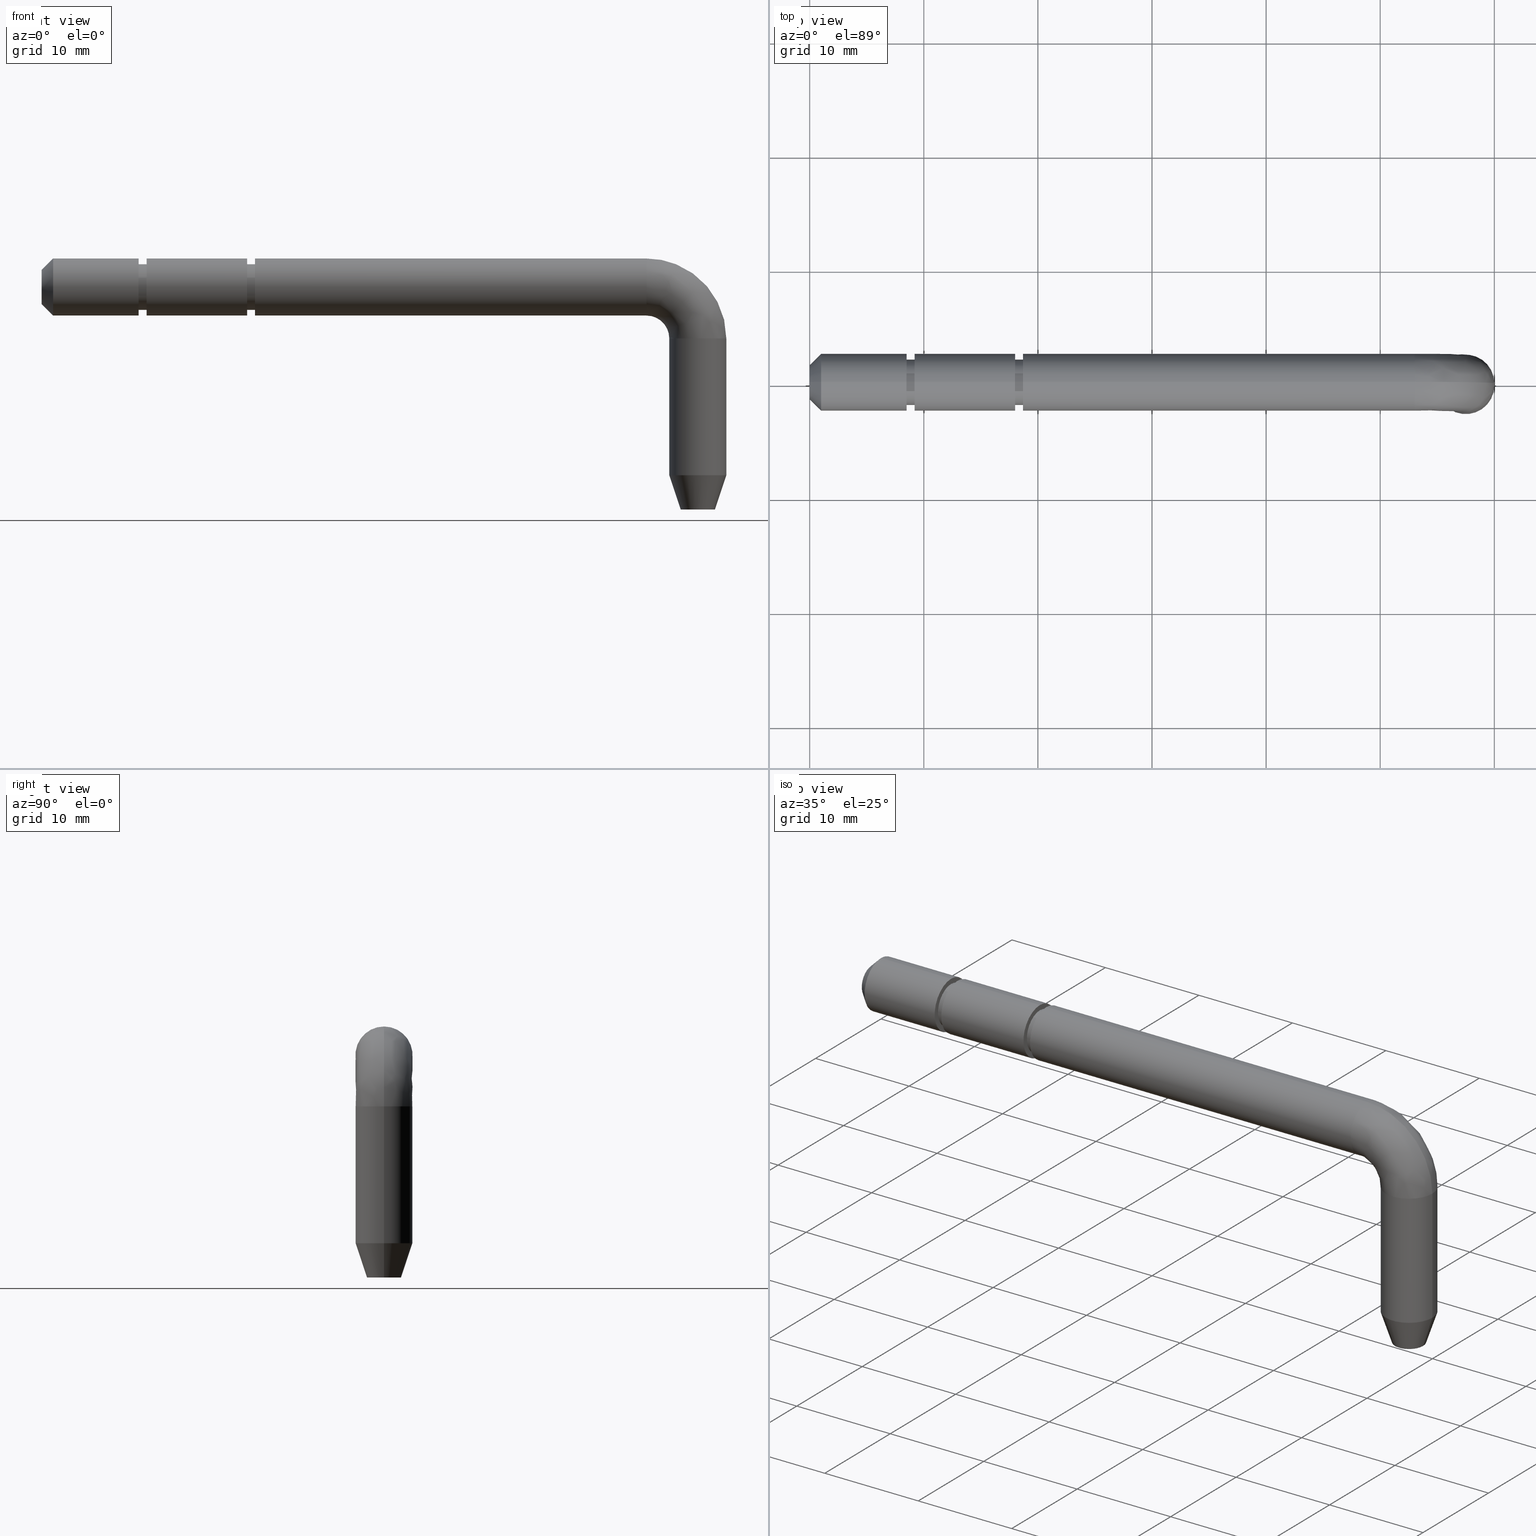
[diagram: canonical four-view strip — front | top / right | iso, engineering-drawing reading convention]
A machine part, canonical four-view strip (front | top / right | iso — engineering-drawing reading convention). The complete STEP part file that produces these views, byte-faithful:
ISO-10303-21;
HEADER;

FILE_DESCRIPTION( (''), '2;1');
FILE_NAME ('PC002.10632.TH_183_1_1508.stp','2025-08-18T19:11:07',(''),(''),'spGate 19.8.4 (****-****-****-****)','','');

FILE_SCHEMA (('AUTOMOTIVE_DESIGN'));
ENDSEC;

DATA;
#10=(GEOMETRIC_REPRESENTATION_CONTEXT(3) GLOBAL_UNCERTAINTY_ASSIGNED_CONTEXT((#11)) GLOBAL_UNIT_ASSIGNED_CONTEXT((#12,#13,#14)) REPRESENTATION_CONTEXT('ID1','3D'));
#11=UNCERTAINTY_MEASURE_WITH_UNIT(LENGTH_MEASURE(0.01),#15,'DISTANCE_ACCURACY_VALUE','Maximum model space distance between geometric entities at asserted connectivities');
#12=(NAMED_UNIT(*) SI_UNIT($,.STERADIAN.) SOLID_ANGLE_UNIT());
#13=(CONVERSION_BASED_UNIT('DEGREE',#16) NAMED_UNIT(#17) PLANE_ANGLE_UNIT());
#14=(LENGTH_UNIT() NAMED_UNIT(*) SI_UNIT(.MILLI.,.METRE.));
#15=(LENGTH_UNIT() NAMED_UNIT(*) SI_UNIT(.MILLI.,.METRE.));
#16=PLANE_ANGLE_MEASURE_WITH_UNIT(PLANE_ANGLE_MEASURE(0.01745329252),#18);
#17=DIMENSIONAL_EXPONENTS(0.0,0.0,0.0,0.0,0.0,0.0,0.0);
#18=(NAMED_UNIT(*) PLANE_ANGLE_UNIT() SI_UNIT($,.RADIAN.));
#19=MANIFOLD_SOLID_BREP('TH_183_1',#31);
#20=ADVANCED_BREP_SHAPE_REPRESENTATION('',(#19),#10);
#21=APPLICATION_CONTEXT('');
#22=APPLICATION_PROTOCOL_DEFINITION('International Standard','automotive_design',1999,#21);
#23=PRODUCT_DEFINITION_CONTEXT('',#21,'design');
#24=PRODUCT_CONTEXT('',#21,'mechanical');
#25=PRODUCT('','','',(#24));
#26=PRODUCT_DEFINITION_FORMATION_WITH_SPECIFIED_SOURCE('','',#25,.NOT_KNOWN.);
#27=PRODUCT_RELATED_PRODUCT_CATEGORY('tool','tool',(#25));
#28=PRODUCT_DEFINITION('','',#26,#23);
#29=PRODUCT_DEFINITION_SHAPE('','',#28);
#30=SHAPE_DEFINITION_REPRESENTATION(#29,#20);
#31=CLOSED_SHELL('',(#40,#41,#42,#43,#44,#45,#46,#47,#48,#49,#50,#51,#52,#53,#54,#55,#56,#57,#58,#59,#60,#61,#62,#63));
#32=COLOUR_RGB('',0.00000000000E+00,0.00000000000E+00,0.00000000000E+00);
#33=FILL_AREA_STYLE_COLOUR('',#32);
#34=FILL_AREA_STYLE('',(#33));
#35=SURFACE_STYLE_FILL_AREA(#34);
#36=SURFACE_SIDE_STYLE('',(#35));
#37=SURFACE_STYLE_USAGE(.BOTH.,#36);
#38=PRESENTATION_STYLE_ASSIGNMENT((#37));
#39=STYLED_ITEM('',(#38),#19);
#40=ADVANCED_FACE('',(#65),#64,.T.);
#41=ADVANCED_FACE('',(#75,#76),#74,.T.);
#42=ADVANCED_FACE('',(#86,#87),#85,.T.);
#43=ADVANCED_FACE('',(#97,#98),#96,.T.);
#44=ADVANCED_FACE('',(#108),#107,.T.);
#45=ADVANCED_FACE('',(#118),#117,.T.);
#46=ADVANCED_FACE('',(#128,#129),#127,.T.);
#47=ADVANCED_FACE('',(#139),#138,.T.);
#48=ADVANCED_FACE('',(#149),#148,.T.);
#49=ADVANCED_FACE('',(#159),#158,.T.);
#50=ADVANCED_FACE('',(#169),#168,.T.);
#51=ADVANCED_FACE('',(#179),#178,.T.);
#52=ADVANCED_FACE('',(#189),#188,.T.);
#53=ADVANCED_FACE('',(#199),#198,.T.);
#54=ADVANCED_FACE('',(#209),#208,.T.);
#55=ADVANCED_FACE('',(#219),#218,.T.);
#56=ADVANCED_FACE('',(#229),#228,.T.);
#57=ADVANCED_FACE('',(#239),#238,.T.);
#58=ADVANCED_FACE('',(#249),#248,.T.);
#59=ADVANCED_FACE('',(#259),#258,.T.);
#60=ADVANCED_FACE('',(#269),#268,.T.);
#61=ADVANCED_FACE('',(#279),#278,.T.);
#62=ADVANCED_FACE('',(#289),#288,.T.);
#63=ADVANCED_FACE('',(#299),#298,.T.);
#64=( BOUNDED_SURFACE() B_SPLINE_SURFACE( 3,3,((#308,#309,#310,#311,#312),(#313,#314,#315,#316,#317),(#318,#319,#320,#321,#322),(#323,#324,#325,#326,#327),(#328,#329,#330,#331,#332),(#333,#334,#335,#336,#337),(#338,#339,#340,#341,#342)), .UNSPECIFIED.,.F.,.F.,.F.) B_SPLINE_SURFACE_WITH_KNOTS((4,1,1,1,4),(4,1,4),(0.00000000000E+00,2.50000000000E-01,5.00000000000E-01,7.50000000000E-01,1.00000000000E+00),(0.00000000000E+00,5.00000000000E-01,1.00000000000E+00), .UNSPECIFIED. ) GEOMETRIC_REPRESENTATION_ITEM() RATIONAL_B_SPLINE_SURFACE(((1.00000000000E+00,1.00000000000E+00,1.00000000000E+00,1.00000000000E+00,1.00000000000E+00),(1.00000000000E+00,1.00000000000E+00,1.00000000000E+00,1.00000000000E+00,1.00000000000E+00),(1.00000000000E+00,1.00000000000E+00,1.00000000000E+00,1.00000000000E+00,1.00000000000E+00),(1.00000000000E+00,1.00000000000E+00,1.00000000000E+00,1.00000000000E+00,1.00000000000E+00),(1.00000000000E+00,1.00000000000E+00,1.00000000000E+00,1.00000000000E+00,1.00000000000E+00),(1.00000000000E+00,1.00000000000E+00,1.00000000000E+00,1.00000000000E+00,1.00000000000E+00),(1.00000000000E+00,1.00000000000E+00,1.00000000000E+00,1.00000000000E+00,1.00000000000E+00))) REPRESENTATION_ITEM('') SURFACE() );
#65=FACE_OUTER_BOUND('',#343,.T.);
#66=COLOUR_RGB('',1.00000000000E+00,1.00000000000E+00,1.00000000000E+00);
#67=FILL_AREA_STYLE_COLOUR('',#66);
#68=FILL_AREA_STYLE('',(#67));
#69=SURFACE_STYLE_FILL_AREA(#68);
#70=SURFACE_SIDE_STYLE('',(#69));
#71=SURFACE_STYLE_USAGE(.BOTH.,#70);
#72=PRESENTATION_STYLE_ASSIGNMENT((#71));
#73=STYLED_ITEM('',(#72),#40);
#74=PLANE('',#347);
#75=FACE_OUTER_BOUND('',#348,.T.);
#76=FACE_BOUND('',#349,.T.);
#77=COLOUR_RGB('',1.00000000000E+00,1.00000000000E+00,1.00000000000E+00);
#78=FILL_AREA_STYLE_COLOUR('',#77);
#79=FILL_AREA_STYLE('',(#78));
#80=SURFACE_STYLE_FILL_AREA(#79);
#81=SURFACE_SIDE_STYLE('',(#80));
#82=SURFACE_STYLE_USAGE(.BOTH.,#81);
#83=PRESENTATION_STYLE_ASSIGNMENT((#82));
#84=STYLED_ITEM('',(#83),#41);
#85=PLANE('',#353);
#86=FACE_OUTER_BOUND('',#354,.T.);
#87=FACE_BOUND('',#355,.T.);
#88=COLOUR_RGB('',1.00000000000E+00,1.00000000000E+00,1.00000000000E+00);
#89=FILL_AREA_STYLE_COLOUR('',#88);
#90=FILL_AREA_STYLE('',(#89));
#91=SURFACE_STYLE_FILL_AREA(#90);
#92=SURFACE_SIDE_STYLE('',(#91));
#93=SURFACE_STYLE_USAGE(.BOTH.,#92);
#94=PRESENTATION_STYLE_ASSIGNMENT((#93));
#95=STYLED_ITEM('',(#94),#42);
#96=PLANE('',#359);
#97=FACE_OUTER_BOUND('',#360,.T.);
#98=FACE_BOUND('',#361,.T.);
#99=COLOUR_RGB('',1.00000000000E+00,1.00000000000E+00,1.00000000000E+00);
#100=FILL_AREA_STYLE_COLOUR('',#99);
#101=FILL_AREA_STYLE('',(#100));
#102=SURFACE_STYLE_FILL_AREA(#101);
#103=SURFACE_SIDE_STYLE('',(#102));
#104=SURFACE_STYLE_USAGE(.BOTH.,#103);
#105=PRESENTATION_STYLE_ASSIGNMENT((#104));
#106=STYLED_ITEM('',(#105),#43);
#107=PLANE('',#365);
#108=FACE_OUTER_BOUND('',#366,.T.);
#109=COLOUR_RGB('',1.00000000000E+00,1.00000000000E+00,1.00000000000E+00);
#110=FILL_AREA_STYLE_COLOUR('',#109);
#111=FILL_AREA_STYLE('',(#110));
#112=SURFACE_STYLE_FILL_AREA(#111);
#113=SURFACE_SIDE_STYLE('',(#112));
#114=SURFACE_STYLE_USAGE(.BOTH.,#113);
#115=PRESENTATION_STYLE_ASSIGNMENT((#114));
#116=STYLED_ITEM('',(#115),#44);
#117=PLANE('',#370);
#118=FACE_OUTER_BOUND('',#371,.T.);
#119=COLOUR_RGB('',1.00000000000E+00,1.00000000000E+00,1.00000000000E+00);
#120=FILL_AREA_STYLE_COLOUR('',#119);
#121=FILL_AREA_STYLE('',(#120));
#122=SURFACE_STYLE_FILL_AREA(#121);
#123=SURFACE_SIDE_STYLE('',(#122));
#124=SURFACE_STYLE_USAGE(.BOTH.,#123);
#125=PRESENTATION_STYLE_ASSIGNMENT((#124));
#126=STYLED_ITEM('',(#125),#45);
#127=PLANE('',#375);
#128=FACE_OUTER_BOUND('',#376,.T.);
#129=FACE_BOUND('',#377,.T.);
#130=COLOUR_RGB('',1.00000000000E+00,1.00000000000E+00,1.00000000000E+00);
#131=FILL_AREA_STYLE_COLOUR('',#130);
#132=FILL_AREA_STYLE('',(#131));
#133=SURFACE_STYLE_FILL_AREA(#132);
#134=SURFACE_SIDE_STYLE('',(#133));
#135=SURFACE_STYLE_USAGE(.BOTH.,#134);
#136=PRESENTATION_STYLE_ASSIGNMENT((#135));
#137=STYLED_ITEM('',(#136),#46);
#138=( BOUNDED_SURFACE() B_SPLINE_SURFACE( 2,2,((#378,#379,#380),(#381,#382,#383),(#384,#385,#386),(#387,#388,#389),(#390,#391,#392),(#393,#394,#395),(#396,#397,#398)), .UNSPECIFIED.,.F.,.F.,.F.) B_SPLINE_SURFACE_WITH_KNOTS((3,2,2,3),(3,3),(-1.48671086901E-03,1.04670198091E+00,2.09489067268E+00,3.14307936446E+00),(0.00000000000E+00,1.57079632677E+00), .UNSPECIFIED. ) GEOMETRIC_REPRESENTATION_ITEM() RATIONAL_B_SPLINE_SURFACE(((1.00000000000E+00,7.07106781191E-01,9.99999999991E-01),(8.65777512306E-01,6.12197149954E-01,8.65777512298E-01),(1.00000000000E+00,7.07106781191E-01,9.99999999991E-01),(8.65777512306E-01,6.12197149954E-01,8.65777512298E-01),(1.00000000000E+00,7.07106781191E-01,9.99999999991E-01),(8.65777512306E-01,6.12197149954E-01,8.65777512298E-01),(1.00000000000E+00,7.07106781191E-01,9.99999999991E-01))) REPRESENTATION_ITEM('') SURFACE() );
#139=FACE_OUTER_BOUND('',#399,.T.);
#140=COLOUR_RGB('',1.00000000000E+00,1.00000000000E+00,1.00000000000E+00);
#141=FILL_AREA_STYLE_COLOUR('',#140);
#142=FILL_AREA_STYLE('',(#141));
#143=SURFACE_STYLE_FILL_AREA(#142);
#144=SURFACE_SIDE_STYLE('',(#143));
#145=SURFACE_STYLE_USAGE(.BOTH.,#144);
#146=PRESENTATION_STYLE_ASSIGNMENT((#145));
#147=STYLED_ITEM('',(#146),#47);
#148=CYLINDRICAL_SURFACE('',#403,2.50000000000E+00);
#149=FACE_OUTER_BOUND('',#404,.T.);
#150=COLOUR_RGB('',1.00000000000E+00,1.00000000000E+00,1.00000000000E+00);
#151=FILL_AREA_STYLE_COLOUR('',#150);
#152=FILL_AREA_STYLE('',(#151));
#153=SURFACE_STYLE_FILL_AREA(#152);
#154=SURFACE_SIDE_STYLE('',(#153));
#155=SURFACE_STYLE_USAGE(.BOTH.,#154);
#156=PRESENTATION_STYLE_ASSIGNMENT((#155));
#157=STYLED_ITEM('',(#156),#48);
#158=CYLINDRICAL_SURFACE('',#408,2.50000000000E+00);
#159=FACE_OUTER_BOUND('',#409,.T.);
#160=COLOUR_RGB('',1.00000000000E+00,1.00000000000E+00,1.00000000000E+00);
#161=FILL_AREA_STYLE_COLOUR('',#160);
#162=FILL_AREA_STYLE('',(#161));
#163=SURFACE_STYLE_FILL_AREA(#162);
#164=SURFACE_SIDE_STYLE('',(#163));
#165=SURFACE_STYLE_USAGE(.BOTH.,#164);
#166=PRESENTATION_STYLE_ASSIGNMENT((#165));
#167=STYLED_ITEM('',(#166),#49);
#168=CYLINDRICAL_SURFACE('',#413,2.00000000000E+00);
#169=FACE_OUTER_BOUND('',#414,.T.);
#170=COLOUR_RGB('',1.00000000000E+00,1.00000000000E+00,1.00000000000E+00);
#171=FILL_AREA_STYLE_COLOUR('',#170);
#172=FILL_AREA_STYLE('',(#171));
#173=SURFACE_STYLE_FILL_AREA(#172);
#174=SURFACE_SIDE_STYLE('',(#173));
#175=SURFACE_STYLE_USAGE(.BOTH.,#174);
#176=PRESENTATION_STYLE_ASSIGNMENT((#175));
#177=STYLED_ITEM('',(#176),#50);
#178=CYLINDRICAL_SURFACE('',#418,2.00000000000E+00);
#179=FACE_OUTER_BOUND('',#419,.T.);
#180=COLOUR_RGB('',1.00000000000E+00,1.00000000000E+00,1.00000000000E+00);
#181=FILL_AREA_STYLE_COLOUR('',#180);
#182=FILL_AREA_STYLE('',(#181));
#183=SURFACE_STYLE_FILL_AREA(#182);
#184=SURFACE_SIDE_STYLE('',(#183));
#185=SURFACE_STYLE_USAGE(.BOTH.,#184);
#186=PRESENTATION_STYLE_ASSIGNMENT((#185));
#187=STYLED_ITEM('',(#186),#51);
#188=CYLINDRICAL_SURFACE('',#423,2.50000000000E+00);
#189=FACE_OUTER_BOUND('',#424,.T.);
#190=COLOUR_RGB('',1.00000000000E+00,1.00000000000E+00,1.00000000000E+00);
#191=FILL_AREA_STYLE_COLOUR('',#190);
#192=FILL_AREA_STYLE('',(#191));
#193=SURFACE_STYLE_FILL_AREA(#192);
#194=SURFACE_SIDE_STYLE('',(#193));
#195=SURFACE_STYLE_USAGE(.BOTH.,#194);
#196=PRESENTATION_STYLE_ASSIGNMENT((#195));
#197=STYLED_ITEM('',(#196),#52);
#198=CYLINDRICAL_SURFACE('',#428,2.50000000000E+00);
#199=FACE_OUTER_BOUND('',#429,.T.);
#200=COLOUR_RGB('',1.00000000000E+00,1.00000000000E+00,1.00000000000E+00);
#201=FILL_AREA_STYLE_COLOUR('',#200);
#202=FILL_AREA_STYLE('',(#201));
#203=SURFACE_STYLE_FILL_AREA(#202);
#204=SURFACE_SIDE_STYLE('',(#203));
#205=SURFACE_STYLE_USAGE(.BOTH.,#204);
#206=PRESENTATION_STYLE_ASSIGNMENT((#205));
#207=STYLED_ITEM('',(#206),#53);
#208=CYLINDRICAL_SURFACE('',#433,2.00000000000E+00);
#209=FACE_OUTER_BOUND('',#434,.T.);
#210=COLOUR_RGB('',1.00000000000E+00,1.00000000000E+00,1.00000000000E+00);
#211=FILL_AREA_STYLE_COLOUR('',#210);
#212=FILL_AREA_STYLE('',(#211));
#213=SURFACE_STYLE_FILL_AREA(#212);
#214=SURFACE_SIDE_STYLE('',(#213));
#215=SURFACE_STYLE_USAGE(.BOTH.,#214);
#216=PRESENTATION_STYLE_ASSIGNMENT((#215));
#217=STYLED_ITEM('',(#216),#54);
#218=CYLINDRICAL_SURFACE('',#438,2.00000000000E+00);
#219=FACE_OUTER_BOUND('',#439,.T.);
#220=COLOUR_RGB('',1.00000000000E+00,1.00000000000E+00,1.00000000000E+00);
#221=FILL_AREA_STYLE_COLOUR('',#220);
#222=FILL_AREA_STYLE('',(#221));
#223=SURFACE_STYLE_FILL_AREA(#222);
#224=SURFACE_SIDE_STYLE('',(#223));
#225=SURFACE_STYLE_USAGE(.BOTH.,#224);
#226=PRESENTATION_STYLE_ASSIGNMENT((#225));
#227=STYLED_ITEM('',(#226),#55);
#228=( BOUNDED_SURFACE() B_SPLINE_SURFACE( 2,1,((#440,#441),(#442,#443),(#444,#445),(#446,#447),(#448,#449)), .UNSPECIFIED.,.F.,.F.,.F.) B_SPLINE_SURFACE_WITH_KNOTS((3,2,3),(2,2),(0.00000000000E+00,5.00000000000E-01,1.00000000000E+00),(0.00000000000E+00,1.00000000000E+00), .UNSPECIFIED. ) GEOMETRIC_REPRESENTATION_ITEM() RATIONAL_B_SPLINE_SURFACE(((1.00000000000E+00,1.00000000000E+00),(7.07106781187E-01,7.07106781187E-01),(1.00000000000E+00,1.00000000000E+00),(7.07106781187E-01,7.07106781187E-01),(1.00000000000E+00,1.00000000000E+00))) REPRESENTATION_ITEM('') SURFACE() );
#229=FACE_OUTER_BOUND('',#450,.T.);
#230=COLOUR_RGB('',1.00000000000E+00,1.00000000000E+00,1.00000000000E+00);
#231=FILL_AREA_STYLE_COLOUR('',#230);
#232=FILL_AREA_STYLE('',(#231));
#233=SURFACE_STYLE_FILL_AREA(#232);
#234=SURFACE_SIDE_STYLE('',(#233));
#235=SURFACE_STYLE_USAGE(.BOTH.,#234);
#236=PRESENTATION_STYLE_ASSIGNMENT((#235));
#237=STYLED_ITEM('',(#236),#56);
#238=( BOUNDED_SURFACE() B_SPLINE_SURFACE( 2,1,((#451,#452),(#453,#454),(#455,#456),(#457,#458),(#459,#460)), .UNSPECIFIED.,.F.,.F.,.F.) B_SPLINE_SURFACE_WITH_KNOTS((3,2,3),(2,2),(0.00000000000E+00,5.00000000000E-01,1.00000000000E+00),(0.00000000000E+00,1.00000000000E+00), .UNSPECIFIED. ) GEOMETRIC_REPRESENTATION_ITEM() RATIONAL_B_SPLINE_SURFACE(((1.00000000000E+00,1.00000000000E+00),(7.07106781187E-01,7.07106781187E-01),(1.00000000000E+00,1.00000000000E+00),(7.07106781187E-01,7.07106781187E-01),(1.00000000000E+00,1.00000000000E+00))) REPRESENTATION_ITEM('') SURFACE() );
#239=FACE_OUTER_BOUND('',#461,.T.);
#240=COLOUR_RGB('',1.00000000000E+00,1.00000000000E+00,1.00000000000E+00);
#241=FILL_AREA_STYLE_COLOUR('',#240);
#242=FILL_AREA_STYLE('',(#241));
#243=SURFACE_STYLE_FILL_AREA(#242);
#244=SURFACE_SIDE_STYLE('',(#243));
#245=SURFACE_STYLE_USAGE(.BOTH.,#244);
#246=PRESENTATION_STYLE_ASSIGNMENT((#245));
#247=STYLED_ITEM('',(#246),#57);
#248=CYLINDRICAL_SURFACE('',#465,2.50000000000E+00);
#249=FACE_OUTER_BOUND('',#466,.T.);
#250=COLOUR_RGB('',1.00000000000E+00,1.00000000000E+00,1.00000000000E+00);
#251=FILL_AREA_STYLE_COLOUR('',#250);
#252=FILL_AREA_STYLE('',(#251));
#253=SURFACE_STYLE_FILL_AREA(#252);
#254=SURFACE_SIDE_STYLE('',(#253));
#255=SURFACE_STYLE_USAGE(.BOTH.,#254);
#256=PRESENTATION_STYLE_ASSIGNMENT((#255));
#257=STYLED_ITEM('',(#256),#58);
#258=CYLINDRICAL_SURFACE('',#470,2.50000000000E+00);
#259=FACE_OUTER_BOUND('',#471,.T.);
#260=COLOUR_RGB('',1.00000000000E+00,1.00000000000E+00,1.00000000000E+00);
#261=FILL_AREA_STYLE_COLOUR('',#260);
#262=FILL_AREA_STYLE('',(#261));
#263=SURFACE_STYLE_FILL_AREA(#262);
#264=SURFACE_SIDE_STYLE('',(#263));
#265=SURFACE_STYLE_USAGE(.BOTH.,#264);
#266=PRESENTATION_STYLE_ASSIGNMENT((#265));
#267=STYLED_ITEM('',(#266),#59);
#268=CYLINDRICAL_SURFACE('',#475,2.50000000000E+00);
#269=FACE_OUTER_BOUND('',#476,.T.);
#270=COLOUR_RGB('',1.00000000000E+00,1.00000000000E+00,1.00000000000E+00);
#271=FILL_AREA_STYLE_COLOUR('',#270);
#272=FILL_AREA_STYLE('',(#271));
#273=SURFACE_STYLE_FILL_AREA(#272);
#274=SURFACE_SIDE_STYLE('',(#273));
#275=SURFACE_STYLE_USAGE(.BOTH.,#274);
#276=PRESENTATION_STYLE_ASSIGNMENT((#275));
#277=STYLED_ITEM('',(#276),#60);
#278=CYLINDRICAL_SURFACE('',#480,2.50000000000E+00);
#279=FACE_OUTER_BOUND('',#481,.T.);
#280=COLOUR_RGB('',1.00000000000E+00,1.00000000000E+00,1.00000000000E+00);
#281=FILL_AREA_STYLE_COLOUR('',#280);
#282=FILL_AREA_STYLE('',(#281));
#283=SURFACE_STYLE_FILL_AREA(#282);
#284=SURFACE_SIDE_STYLE('',(#283));
#285=SURFACE_STYLE_USAGE(.BOTH.,#284);
#286=PRESENTATION_STYLE_ASSIGNMENT((#285));
#287=STYLED_ITEM('',(#286),#61);
#288=( BOUNDED_SURFACE() B_SPLINE_SURFACE( 2,1,((#482,#483),(#484,#485),(#486,#487),(#488,#489),(#490,#491)), .UNSPECIFIED.,.F.,.F.,.F.) B_SPLINE_SURFACE_WITH_KNOTS((3,2,3),(2,2),(0.00000000000E+00,5.00000000000E-01,1.00000000000E+00),(0.00000000000E+00,1.00000000000E+00), .UNSPECIFIED. ) GEOMETRIC_REPRESENTATION_ITEM() RATIONAL_B_SPLINE_SURFACE(((1.00000000000E+00,1.00000000000E+00),(7.07106781187E-01,7.07106781187E-01),(1.00000000000E+00,1.00000000000E+00),(7.07106781187E-01,7.07106781187E-01),(1.00000000000E+00,1.00000000000E+00))) REPRESENTATION_ITEM('') SURFACE() );
#289=FACE_OUTER_BOUND('',#492,.T.);
#290=COLOUR_RGB('',1.00000000000E+00,1.00000000000E+00,1.00000000000E+00);
#291=FILL_AREA_STYLE_COLOUR('',#290);
#292=FILL_AREA_STYLE('',(#291));
#293=SURFACE_STYLE_FILL_AREA(#292);
#294=SURFACE_SIDE_STYLE('',(#293));
#295=SURFACE_STYLE_USAGE(.BOTH.,#294);
#296=PRESENTATION_STYLE_ASSIGNMENT((#295));
#297=STYLED_ITEM('',(#296),#62);
#298=( BOUNDED_SURFACE() B_SPLINE_SURFACE( 2,1,((#493,#494),(#495,#496),(#497,#498),(#499,#500),(#501,#502)), .UNSPECIFIED.,.F.,.F.,.F.) B_SPLINE_SURFACE_WITH_KNOTS((3,2,3),(2,2),(0.00000000000E+00,5.00000000000E-01,1.00000000000E+00),(0.00000000000E+00,1.00000000000E+00), .UNSPECIFIED. ) GEOMETRIC_REPRESENTATION_ITEM() RATIONAL_B_SPLINE_SURFACE(((1.00000000000E+00,1.00000000000E+00),(7.07106781187E-01,7.07106781187E-01),(1.00000000000E+00,1.00000000000E+00),(7.07106781187E-01,7.07106781187E-01),(1.00000000000E+00,1.00000000000E+00))) REPRESENTATION_ITEM('') SURFACE() );
#299=FACE_OUTER_BOUND('',#503,.T.);
#300=COLOUR_RGB('',1.00000000000E+00,1.00000000000E+00,1.00000000000E+00);
#301=FILL_AREA_STYLE_COLOUR('',#300);
#302=FILL_AREA_STYLE('',(#301));
#303=SURFACE_STYLE_FILL_AREA(#302);
#304=SURFACE_SIDE_STYLE('',(#303));
#305=SURFACE_STYLE_USAGE(.BOTH.,#304);
#306=PRESENTATION_STYLE_ASSIGNMENT((#305));
#307=STYLED_ITEM('',(#306),#63);
#308=CARTESIAN_POINT('',(6.00000000001E+01,-3.66468367298E-14,-4.49999999981E+00));
#309=CARTESIAN_POINT('',(6.00128395430E+01,-2.63084948545E-14,-2.66216051490E+00));
#310=CARTESIAN_POINT('',(5.84731038834E+01,-5.42652553800E-16,9.87577952775E-01));
#311=CARTESIAN_POINT('',(5.48193115676E+01,2.03207503592E-14,2.51766915473E+00));
#312=CARTESIAN_POINT('',(5.29815123345E+01,2.63675101311E-14,2.49997558612E+00));
#313=CARTESIAN_POINT('',(6.00000000001E+01,6.54498527056E-01,-4.49999999981E+00));
#314=CARTESIAN_POINT('',(6.00128395430E+01,6.54498527056E-01,-2.66216051490E+00));
#315=CARTESIAN_POINT('',(5.84731038834E+01,6.54498527056E-01,9.87577952775E-01));
#316=CARTESIAN_POINT('',(5.48193115676E+01,6.54498527056E-01,2.51766915473E+00));
#317=CARTESIAN_POINT('',(5.29815123345E+01,6.54498527056E-01,2.49997558612E+00));
#318=CARTESIAN_POINT('',(5.94590290623E+01,1.95828464241E+00,-4.49999999983E+00));
#319=CARTESIAN_POINT('',(5.94708763453E+01,1.95828464241E+00,-2.80419162201E+00));
#320=CARTESIAN_POINT('',(5.80501338633E+01,1.95828464241E+00,5.63489354029E-01));
#321=CARTESIAN_POINT('',(5.46787123269E+01,1.95828464241E+00,1.97533271707E+00));
#322=CARTESIAN_POINT('',(5.29829410902E+01,1.95828464241E+00,1.95900653509E+00));
#323=CARTESIAN_POINT('',(5.75000000001E+01,2.77085767880E+00,-4.49999999990E+00));
#324=CARTESIAN_POINT('',(5.75082539919E+01,2.77085767880E+00,-3.31853175960E+00));
#325=CARTESIAN_POINT('',(5.65184239251E+01,2.77085767880E+00,-9.72271316078E-01));
#326=CARTESIAN_POINT('',(5.41695574363E+01,2.77085767880E+00,1.13587423256E-02));
#327=CARTESIAN_POINT('',(5.29881150722E+01,2.77085767880E+00,-1.56946348364E-05));
#328=CARTESIAN_POINT('',(5.55409709378E+01,1.95828464241E+00,-4.49999999997E+00));
#329=CARTESIAN_POINT('',(5.55456316386E+01,1.95828464241E+00,-3.83287189719E+00));
#330=CARTESIAN_POINT('',(5.49867139868E+01,1.95828464241E+00,-2.50803198619E+00));
#331=CARTESIAN_POINT('',(5.36604025457E+01,1.95828464241E+00,-1.95261523242E+00));
#332=CARTESIAN_POINT('',(5.29932890542E+01,1.95828464241E+00,-1.95903792436E+00));
#333=CARTESIAN_POINT('',(5.50000000001E+01,6.54498527056E-01,-4.49999999999E+00));
#334=CARTESIAN_POINT('',(5.50036684409E+01,6.54498527056E-01,-3.97490300429E+00));
#335=CARTESIAN_POINT('',(5.45637439667E+01,6.54498527056E-01,-2.93212058493E+00));
#336=CARTESIAN_POINT('',(5.35198033050E+01,6.54498527056E-01,-2.49495167008E+00));
#337=CARTESIAN_POINT('',(5.29947178099E+01,6.54498527056E-01,-2.50000697539E+00));
#338=CARTESIAN_POINT('',(5.50000000001E+01,-1.96176824939E-14,-4.49999999999E+00));
#339=CARTESIAN_POINT('',(5.50036684409E+01,-1.66638705295E-14,-3.97490300429E+00));
#340=CARTESIAN_POINT('',(5.45637439667E+01,-9.30220130053E-15,-2.93212058493E+00));
#341=CARTESIAN_POINT('',(5.35198033050E+01,-3.34122903952E-15,-2.49495167008E+00));
#342=CARTESIAN_POINT('',(5.29947178099E+01,-1.61358339038E-15,-2.50000697539E+00));
#343=EDGE_LOOP('',(#504,#505,#506,#507));
#344=CARTESIAN_POINT('',(1.87000000000E+01,-5.19615242271E+00,3.25000000000E+00));
#345=DIRECTION('',(-1.00000000000E+00,0.00000000000E+00,0.00000000000E+00));
#346=DIRECTION('',(0.00000000000E+00,1.00000000000E+00,0.00000000000E+00));
#347=AXIS2_PLACEMENT_3D('',#344,#345,#346);
#348=EDGE_LOOP('',(#508,#509));
#349=EDGE_LOOP('',(#510,#511));
#350=CARTESIAN_POINT('',(1.80000000000E+01,-5.19615242271E+00,-3.25000000000E+00));
#351=DIRECTION('',(1.00000000000E+00,0.00000000000E+00,0.00000000000E+00));
#352=DIRECTION('',(0.00000000000E+00,1.00000000000E+00,0.00000000000E+00));
#353=AXIS2_PLACEMENT_3D('',#350,#351,#352);
#354=EDGE_LOOP('',(#512,#513));
#355=EDGE_LOOP('',(#514,#515));
#356=CARTESIAN_POINT('',(8.50000000000E+00,-5.19615242271E+00,-5.75000000000E+00));
#357=DIRECTION('',(1.00000000000E+00,0.00000000000E+00,0.00000000000E+00));
#358=DIRECTION('',(0.00000000000E+00,1.00000000000E+00,0.00000000000E+00));
#359=AXIS2_PLACEMENT_3D('',#356,#357,#358);
#360=EDGE_LOOP('',(#516,#517));
#361=EDGE_LOOP('',(#518,#519));
#362=CARTESIAN_POINT('',(0.00000000000E+00,-3.11769145362E+00,-3.45000000000E+00));
#363=DIRECTION('',(-1.00000000000E+00,0.00000000000E+00,0.00000000000E+00));
#364=DIRECTION('',(0.00000000000E+00,0.00000000000E+00,1.00000000000E+00));
#365=AXIS2_PLACEMENT_3D('',#362,#363,#364);
#366=EDGE_LOOP('',(#520,#521));
#367=CARTESIAN_POINT('',(6.09500000000E+01,-3.11769145362E+00,-1.95000000000E+01));
#368=DIRECTION('',(0.00000000000E+00,0.00000000000E+00,-1.00000000000E+00));
#369=DIRECTION('',(-1.00000000000E+00,0.00000000000E+00,0.00000000000E+00));
#370=AXIS2_PLACEMENT_3D('',#367,#368,#369);
#371=EDGE_LOOP('',(#522,#523));
#372=CARTESIAN_POINT('',(9.20000000000E+00,-5.19615242271E+00,3.25000000000E+00));
#373=DIRECTION('',(-1.00000000000E+00,0.00000000000E+00,0.00000000000E+00));
#374=DIRECTION('',(0.00000000000E+00,1.00000000000E+00,0.00000000000E+00));
#375=AXIS2_PLACEMENT_3D('',#372,#373,#374);
#376=EDGE_LOOP('',(#524,#525));
#377=EDGE_LOOP('',(#526,#527));
#378=CARTESIAN_POINT('',(5.30000000000E+01,3.71677580336E-03,2.49999723712E+00));
#379=CARTESIAN_POINT('',(5.99999972370E+01,3.71677580334E-03,2.49999723712E+00));
#380=CARTESIAN_POINT('',(5.99999972372E+01,3.71677580330E-03,-4.49999999992E+00));
#381=CARTESIAN_POINT('',(5.30000000000E+01,-1.44130967407E+00,2.50214557523E+00));
#382=CARTESIAN_POINT('',(6.00021455751E+01,-1.44130967407E+00,2.50214557523E+00));
#383=CARTESIAN_POINT('',(6.00021455753E+01,-1.44130967407E+00,-4.49999999992E+00));
#384=CARTESIAN_POINT('',(5.30000000000E+01,-2.16444378077E+00,1.25107278762E+00));
#385=CARTESIAN_POINT('',(5.87510727876E+01,-2.16444378077E+00,1.25107278762E+00));
#386=CARTESIAN_POINT('',(5.87510727877E+01,-2.16444378077E+00,-4.49999999994E+00));
#387=CARTESIAN_POINT('',(5.30000000000E+01,-2.88757788747E+00,4.51372272892E-12));
#388=CARTESIAN_POINT('',(5.75000000000E+01,-2.88757788747E+00,4.51372272892E-12));
#389=CARTESIAN_POINT('',(5.75000000001E+01,-2.88757788747E+00,-4.49999999997E+00));
#390=CARTESIAN_POINT('',(5.30000000000E+01,-2.16444378077E+00,-1.25107278761E+00));
#391=CARTESIAN_POINT('',(5.62489272124E+01,-2.16444378077E+00,-1.25107278761E+00));
#392=CARTESIAN_POINT('',(5.62489272124E+01,-2.16444378077E+00,-4.50000000000E+00));
#393=CARTESIAN_POINT('',(5.30000000000E+01,-1.44130967407E+00,-2.50214557522E+00));
#394=CARTESIAN_POINT('',(5.49978544248E+01,-1.44130967407E+00,-2.50214557522E+00));
#395=CARTESIAN_POINT('',(5.49978544248E+01,-1.44130967407E+00,-4.50000000002E+00));
#396=CARTESIAN_POINT('',(5.30000000000E+01,3.71677580333E-03,-2.49999723711E+00));
#397=CARTESIAN_POINT('',(5.50000027629E+01,3.71677580332E-03,-2.49999723711E+00));
#398=CARTESIAN_POINT('',(5.50000027629E+01,3.71677580331E-03,-4.50000000002E+00));
#399=EDGE_LOOP('',(#528,#529,#530,#531));
#400=CARTESIAN_POINT('',(5.64300000000E+01,4.15130844335E-14,2.53256980007E-30));
#401=DIRECTION('',(1.00000000000E+00,2.00971834712E-15,1.23059757049E-31));
#402=DIRECTION('',(-3.32487832155E-29,1.66052337734E-14,-1.00000000000E+00));
#403=AXIS2_PLACEMENT_3D('',#400,#401,#402);
#404=EDGE_LOOP('',(#532,#533,#534,#535));
#405=CARTESIAN_POINT('',(5.64300000000E+01,4.15130844335E-14,2.53256980007E-30));
#406=DIRECTION('',(1.00000000000E+00,2.00971834712E-15,1.23059757049E-31));
#407=DIRECTION('',(-3.32487832155E-29,1.66052337734E-14,-1.00000000000E+00));
#408=AXIS2_PLACEMENT_3D('',#405,#406,#407);
#409=EDGE_LOOP('',(#536,#537,#538,#539));
#410=CARTESIAN_POINT('',(1.87700000000E+01,4.27971141107E-16,-3.98630585360E-32));
#411=DIRECTION('',(1.00000000000E+00,1.25607396695E-15,-6.25398757180E-32));
#412=DIRECTION('',(-3.31321580193E-31,2.13985570554E-16,-1.00000000000E+00));
#413=AXIS2_PLACEMENT_3D('',#410,#411,#412);
#414=EDGE_LOOP('',(#540,#541,#542,#543));
#415=CARTESIAN_POINT('',(1.87700000000E+01,4.27971141107E-16,-3.98630585360E-32));
#416=DIRECTION('',(1.00000000000E+00,1.25607396695E-15,-6.25398757180E-32));
#417=DIRECTION('',(-3.31321580193E-31,2.13985570554E-16,-1.00000000000E+00));
#418=AXIS2_PLACEMENT_3D('',#415,#416,#417);
#419=EDGE_LOOP('',(#544,#545,#546,#547));
#420=CARTESIAN_POINT('',(5.75000000000E+01,1.96182736230E-15,-1.77000000000E+01));
#421=DIRECTION('',(1.53824696311E-32,2.51214793389E-16,-1.00000000000E+00));
#422=DIRECTION('',(-1.00000000000E+00,7.84730944919E-16,1.81753552563E-31));
#423=AXIS2_PLACEMENT_3D('',#420,#421,#422);
#424=EDGE_LOOP('',(#548,#549,#550,#551));
#425=CARTESIAN_POINT('',(5.75000000000E+01,1.96182736230E-15,-1.77000000000E+01));
#426=DIRECTION('',(1.53824696311E-32,2.51214793389E-16,-1.00000000000E+00));
#427=DIRECTION('',(-1.00000000000E+00,7.84730944919E-16,1.81753552563E-31));
#428=AXIS2_PLACEMENT_3D('',#425,#426,#427);
#429=EDGE_LOOP('',(#552,#553,#554,#555));
#430=CARTESIAN_POINT('',(9.27000000000E+00,3.23078415191E-17,-2.01629976849E-32));
#431=DIRECTION('',(1.00000000000E+00,3.14018491737E-16,-1.56349689295E-32));
#432=DIRECTION('',(-1.77485753158E-32,1.06310759155E-16,1.00000000000E+00));
#433=AXIS2_PLACEMENT_3D('',#430,#431,#432);
#434=EDGE_LOOP('',(#556,#557,#558,#559));
#435=CARTESIAN_POINT('',(9.27000000000E+00,3.23078415191E-17,-2.01629976849E-32));
#436=DIRECTION('',(1.00000000000E+00,3.14018491737E-16,-1.56349689295E-32));
#437=DIRECTION('',(-1.77485753158E-32,1.06310759155E-16,1.00000000000E+00));
#438=AXIS2_PLACEMENT_3D('',#435,#436,#437);
#439=EDGE_LOOP('',(#560,#561,#562,#563));
#440=CARTESIAN_POINT('',(5.60000000000E+01,-5.06956387009E-15,-1.95000000000E+01));
#441=CARTESIAN_POINT('',(5.50000000000E+01,-3.42497724904E-15,-1.65000000000E+01));
#442=CARTESIAN_POINT('',(5.60000000000E+01,-1.50000000000E+00,-1.95000000000E+01));
#443=CARTESIAN_POINT('',(5.50000000000E+01,-2.50000000000E+00,-1.65000000000E+01));
#444=CARTESIAN_POINT('',(5.75000000000E+01,-1.50000000000E+00,-1.95000000000E+01));
#445=CARTESIAN_POINT('',(5.75000000000E+01,-2.50000000000E+00,-1.65000000000E+01));
#446=CARTESIAN_POINT('',(5.90000000000E+01,-1.50000000000E+00,-1.95000000000E+01));
#447=CARTESIAN_POINT('',(6.00000000000E+01,-2.50000000000E+00,-1.65000000000E+01));
#448=CARTESIAN_POINT('',(5.90000000000E+01,1.11764494938E-15,-1.95000000000E+01));
#449=CARTESIAN_POINT('',(6.00000000000E+01,6.88703745009E-15,-1.65000000000E+01));
#450=EDGE_LOOP('',(#564,#565,#566,#567));
#451=CARTESIAN_POINT('',(5.90000000000E+01,1.11764494938E-15,-1.95000000000E+01));
#452=CARTESIAN_POINT('',(6.00000000000E+01,6.88703745009E-15,-1.65000000000E+01));
#453=CARTESIAN_POINT('',(5.90000000000E+01,1.50000000000E+00,-1.95000000000E+01));
#454=CARTESIAN_POINT('',(6.00000000000E+01,2.50000000000E+00,-1.65000000000E+01));
#455=CARTESIAN_POINT('',(5.75000000000E+01,1.50000000000E+00,-1.95000000000E+01));
#456=CARTESIAN_POINT('',(5.75000000000E+01,2.50000000000E+00,-1.65000000000E+01));
#457=CARTESIAN_POINT('',(5.60000000000E+01,1.50000000000E+00,-1.95000000000E+01));
#458=CARTESIAN_POINT('',(5.50000000000E+01,2.50000000000E+00,-1.65000000000E+01));
#459=CARTESIAN_POINT('',(5.60000000000E+01,-4.70216983035E-15,-1.95000000000E+01));
#460=CARTESIAN_POINT('',(5.50000000000E+01,-2.81265384946E-15,-1.65000000000E+01));
#461=EDGE_LOOP('',(#568,#569,#570,#571));
#462=CARTESIAN_POINT('',(1.88800000000E+01,1.47949495899E-15,8.12194396524E-32));
#463=DIRECTION('',(1.00000000000E+00,2.51214793389E-16,1.53824696311E-32));
#464=DIRECTION('',(-1.33285938546E-31,5.91797983596E-16,-1.00000000000E+00));
#465=AXIS2_PLACEMENT_3D('',#462,#463,#464);
#466=EDGE_LOOP('',(#572,#573,#574,#575));
#467=CARTESIAN_POINT('',(1.88800000000E+01,1.47949495899E-15,8.12194396524E-32));
#468=DIRECTION('',(1.00000000000E+00,2.51214793389E-16,1.53824696311E-32));
#469=DIRECTION('',(-1.33285938546E-31,5.91797983596E-16,-1.00000000000E+00));
#470=AXIS2_PLACEMENT_3D('',#467,#468,#469);
#471=EDGE_LOOP('',(#576,#577,#578,#579));
#472=CARTESIAN_POINT('',(9.25000000000E+00,-9.77385720359E-16,-6.92211133401E-32));
#473=DIRECTION('',(1.00000000000E+00,-2.51214793389E-16,-1.53824696311E-32));
#474=DIRECTION('',(-1.13595970352E-31,-3.90954288144E-16,-1.00000000000E+00));
#475=AXIS2_PLACEMENT_3D('',#472,#473,#474);
#476=EDGE_LOOP('',(#580,#581,#582,#583));
#477=CARTESIAN_POINT('',(9.25000000000E+00,-9.77385720359E-16,-6.92211133401E-32));
#478=DIRECTION('',(1.00000000000E+00,-2.51214793389E-16,-1.53824696311E-32));
#479=DIRECTION('',(-1.13595970352E-31,-3.90954288144E-16,-1.00000000000E+00));
#480=AXIS2_PLACEMENT_3D('',#477,#478,#479);
#481=EDGE_LOOP('',(#584,#585,#586,#587));
#482=CARTESIAN_POINT('',(-1.50000000000E+00,3.84068819304E-17,-8.33182218273E-32));
#483=CARTESIAN_POINT('',(2.03553390593E+00,-2.70534419936E-15,3.53553390593E+00));
#484=CARTESIAN_POINT('',(-1.50000000000E+00,3.84068819304E-17,-8.33182218273E-32));
#485=CARTESIAN_POINT('',(2.03553390593E+00,-3.53553390593E+00,3.53553390593E+00));
#486=CARTESIAN_POINT('',(-1.50000000000E+00,3.84068819304E-17,-8.33182218273E-32));
#487=CARTESIAN_POINT('',(2.03553390593E+00,-3.53553390593E+00,-2.60576669017E-15));
#488=CARTESIAN_POINT('',(-1.50000000000E+00,3.84068819304E-17,-8.33182218273E-32));
#489=CARTESIAN_POINT('',(2.03553390593E+00,-3.53553390593E+00,-3.53553390593E+00));
#490=CARTESIAN_POINT('',(-1.50000000000E+00,3.84068819304E-17,-8.33182218273E-32));
#491=CARTESIAN_POINT('',(2.03553390593E+00,2.50618918097E-15,-3.53553390593E+00));
#492=EDGE_LOOP('',(#588,#589,#590,#591));
#493=CARTESIAN_POINT('',(-1.50000000000E+00,3.84068819304E-17,-8.33182218273E-32));
#494=CARTESIAN_POINT('',(2.03553390593E+00,2.50618918097E-15,-3.53553390593E+00));
#495=CARTESIAN_POINT('',(-1.50000000000E+00,3.84068819304E-17,-8.33182218273E-32));
#496=CARTESIAN_POINT('',(2.03553390593E+00,3.53553390593E+00,-3.53553390593E+00));
#497=CARTESIAN_POINT('',(-1.50000000000E+00,3.84068819304E-17,-8.33182218273E-32));
#498=CARTESIAN_POINT('',(2.03553390593E+00,3.53553390593E+00,2.17278866205E-15));
#499=CARTESIAN_POINT('',(-1.50000000000E+00,3.84068819304E-17,-8.33182218273E-32));
#500=CARTESIAN_POINT('',(2.03553390593E+00,3.53553390593E+00,3.53553390593E+00));
#501=CARTESIAN_POINT('',(-1.50000000000E+00,3.84068819304E-17,-8.33182218273E-32));
#502=CARTESIAN_POINT('',(2.03553390593E+00,-1.83938814313E-15,3.53553390593E+00));
#503=EDGE_LOOP('',(#592,#593,#594,#595));
#504=ORIENTED_EDGE('',*,*,#596,.F.);
#505=ORIENTED_EDGE('',*,*,#597,.T.);
#506=ORIENTED_EDGE('',*,*,#598,.T.);
#507=ORIENTED_EDGE('',*,*,#599,.F.);
#508=ORIENTED_EDGE('',*,*,#600,.T.);
#509=ORIENTED_EDGE('',*,*,#601,.T.);
#510=ORIENTED_EDGE('',*,*,#602,.F.);
#511=ORIENTED_EDGE('',*,*,#603,.F.);
#512=ORIENTED_EDGE('',*,*,#604,.F.);
#513=ORIENTED_EDGE('',*,*,#605,.F.);
#514=ORIENTED_EDGE('',*,*,#606,.T.);
#515=ORIENTED_EDGE('',*,*,#607,.T.);
#516=ORIENTED_EDGE('',*,*,#608,.F.);
#517=ORIENTED_EDGE('',*,*,#609,.F.);
#518=ORIENTED_EDGE('',*,*,#610,.T.);
#519=ORIENTED_EDGE('',*,*,#611,.T.);
#520=ORIENTED_EDGE('',*,*,#612,.T.);
#521=ORIENTED_EDGE('',*,*,#613,.T.);
#522=ORIENTED_EDGE('',*,*,#614,.T.);
#523=ORIENTED_EDGE('',*,*,#615,.T.);
#524=ORIENTED_EDGE('',*,*,#616,.T.);
#525=ORIENTED_EDGE('',*,*,#617,.T.);
#526=ORIENTED_EDGE('',*,*,#618,.F.);
#527=ORIENTED_EDGE('',*,*,#619,.F.);
#528=ORIENTED_EDGE('',*,*,#620,.T.);
#529=ORIENTED_EDGE('',*,*,#597,.F.);
#530=ORIENTED_EDGE('',*,*,#621,.F.);
#531=ORIENTED_EDGE('',*,*,#599,.T.);
#532=ORIENTED_EDGE('',*,*,#598,.F.);
#533=ORIENTED_EDGE('',*,*,#622,.F.);
#534=ORIENTED_EDGE('',*,*,#600,.F.);
#535=ORIENTED_EDGE('',*,*,#623,.T.);
#536=ORIENTED_EDGE('',*,*,#601,.F.);
#537=ORIENTED_EDGE('',*,*,#622,.T.);
#538=ORIENTED_EDGE('',*,*,#620,.F.);
#539=ORIENTED_EDGE('',*,*,#623,.F.);
#540=ORIENTED_EDGE('',*,*,#603,.T.);
#541=ORIENTED_EDGE('',*,*,#624,.F.);
#542=ORIENTED_EDGE('',*,*,#606,.F.);
#543=ORIENTED_EDGE('',*,*,#625,.T.);
#544=ORIENTED_EDGE('',*,*,#607,.F.);
#545=ORIENTED_EDGE('',*,*,#624,.T.);
#546=ORIENTED_EDGE('',*,*,#602,.T.);
#547=ORIENTED_EDGE('',*,*,#625,.F.);
#548=ORIENTED_EDGE('',*,*,#626,.F.);
#549=ORIENTED_EDGE('',*,*,#627,.F.);
#550=ORIENTED_EDGE('',*,*,#596,.T.);
#551=ORIENTED_EDGE('',*,*,#628,.T.);
#552=ORIENTED_EDGE('',*,*,#621,.T.);
#553=ORIENTED_EDGE('',*,*,#627,.T.);
#554=ORIENTED_EDGE('',*,*,#629,.F.);
#555=ORIENTED_EDGE('',*,*,#628,.F.);
#556=ORIENTED_EDGE('',*,*,#619,.T.);
#557=ORIENTED_EDGE('',*,*,#630,.F.);
#558=ORIENTED_EDGE('',*,*,#611,.F.);
#559=ORIENTED_EDGE('',*,*,#631,.T.);
#560=ORIENTED_EDGE('',*,*,#610,.F.);
#561=ORIENTED_EDGE('',*,*,#630,.T.);
#562=ORIENTED_EDGE('',*,*,#618,.T.);
#563=ORIENTED_EDGE('',*,*,#631,.F.);
#564=ORIENTED_EDGE('',*,*,#629,.T.);
#565=ORIENTED_EDGE('',*,*,#632,.F.);
#566=ORIENTED_EDGE('',*,*,#615,.F.);
#567=ORIENTED_EDGE('',*,*,#633,.T.);
#568=ORIENTED_EDGE('',*,*,#614,.F.);
#569=ORIENTED_EDGE('',*,*,#632,.T.);
#570=ORIENTED_EDGE('',*,*,#626,.T.);
#571=ORIENTED_EDGE('',*,*,#633,.F.);
#572=ORIENTED_EDGE('',*,*,#604,.T.);
#573=ORIENTED_EDGE('',*,*,#634,.F.);
#574=ORIENTED_EDGE('',*,*,#616,.F.);
#575=ORIENTED_EDGE('',*,*,#635,.T.);
#576=ORIENTED_EDGE('',*,*,#617,.F.);
#577=ORIENTED_EDGE('',*,*,#634,.T.);
#578=ORIENTED_EDGE('',*,*,#605,.T.);
#579=ORIENTED_EDGE('',*,*,#635,.F.);
#580=ORIENTED_EDGE('',*,*,#609,.T.);
#581=ORIENTED_EDGE('',*,*,#636,.F.);
#582=ORIENTED_EDGE('',*,*,#637,.F.);
#583=ORIENTED_EDGE('',*,*,#638,.T.);
#584=ORIENTED_EDGE('',*,*,#639,.F.);
#585=ORIENTED_EDGE('',*,*,#636,.T.);
#586=ORIENTED_EDGE('',*,*,#608,.T.);
#587=ORIENTED_EDGE('',*,*,#638,.F.);
#588=ORIENTED_EDGE('',*,*,#639,.T.);
#589=ORIENTED_EDGE('',*,*,#640,.F.);
#590=ORIENTED_EDGE('',*,*,#613,.F.);
#591=ORIENTED_EDGE('',*,*,#641,.T.);
#592=ORIENTED_EDGE('',*,*,#612,.F.);
#593=ORIENTED_EDGE('',*,*,#640,.T.);
#594=ORIENTED_EDGE('',*,*,#637,.T.);
#595=ORIENTED_EDGE('',*,*,#641,.F.);
#596=EDGE_CURVE('',#642,#643,#644,.T.);
#597=EDGE_CURVE('',#642,#650,#651,.T.);
#598=EDGE_CURVE('',#650,#657,#658,.T.);
#599=EDGE_CURVE('',#643,#657,#664,.T.);
#600=EDGE_CURVE('',#670,#671,#672,.T.);
#601=EDGE_CURVE('',#671,#670,#678,.T.);
#602=EDGE_CURVE('',#684,#685,#686,.T.);
#603=EDGE_CURVE('',#685,#684,#692,.T.);
#604=EDGE_CURVE('',#698,#699,#700,.T.);
#605=EDGE_CURVE('',#699,#698,#706,.T.);
#606=EDGE_CURVE('',#712,#713,#714,.T.);
#607=EDGE_CURVE('',#713,#712,#720,.T.);
#608=EDGE_CURVE('',#726,#727,#728,.T.);
#609=EDGE_CURVE('',#727,#726,#734,.T.);
#610=EDGE_CURVE('',#740,#741,#742,.T.);
#611=EDGE_CURVE('',#741,#740,#748,.T.);
#612=EDGE_CURVE('',#754,#755,#756,.T.);
#613=EDGE_CURVE('',#755,#754,#762,.T.);
#614=EDGE_CURVE('',#768,#769,#770,.T.);
#615=EDGE_CURVE('',#769,#768,#776,.T.);
#616=EDGE_CURVE('',#782,#783,#784,.T.);
#617=EDGE_CURVE('',#783,#782,#790,.T.);
#618=EDGE_CURVE('',#796,#797,#798,.T.);
#619=EDGE_CURVE('',#797,#796,#804,.T.);
#620=EDGE_CURVE('',#657,#650,#810,.T.);
#621=EDGE_CURVE('',#643,#642,#816,.T.);
#622=EDGE_CURVE('',#671,#650,#822,.T.);
#623=EDGE_CURVE('',#670,#657,#828,.T.);
#624=EDGE_CURVE('',#713,#684,#834,.T.);
#625=EDGE_CURVE('',#712,#685,#840,.T.);
#626=EDGE_CURVE('',#846,#847,#848,.T.);
#627=EDGE_CURVE('',#642,#846,#854,.T.);
#628=EDGE_CURVE('',#643,#847,#860,.T.);
#629=EDGE_CURVE('',#847,#846,#866,.T.);
#630=EDGE_CURVE('',#740,#796,#872,.T.);
#631=EDGE_CURVE('',#741,#797,#878,.T.);
#632=EDGE_CURVE('',#768,#846,#884,.T.);
#633=EDGE_CURVE('',#769,#847,#890,.T.);
#634=EDGE_CURVE('',#783,#699,#896,.T.);
#635=EDGE_CURVE('',#782,#698,#902,.T.);
#636=EDGE_CURVE('',#908,#726,#909,.T.);
#637=EDGE_CURVE('',#915,#908,#916,.T.);
#638=EDGE_CURVE('',#915,#727,#922,.T.);
#639=EDGE_CURVE('',#908,#915,#928,.T.);
#640=EDGE_CURVE('',#754,#915,#934,.T.);
#641=EDGE_CURVE('',#755,#908,#940,.T.);
#642=VERTEX_POINT('',#946);
#643=VERTEX_POINT('',#947);
#644=CIRCLE('',#951,2.50000000000E+00);
#645=COLOUR_RGB('',1.00000000000E+00,1.00000000000E+00,1.00000000000E+00);
#646=DRAUGHTING_PRE_DEFINED_CURVE_FONT('continuous');
#647=CURVE_STYLE( '',#646, POSITIVE_LENGTH_MEASURE(1.00000000000E-06),#645);
#648=PRESENTATION_STYLE_ASSIGNMENT((#647));
#649=STYLED_ITEM('',(#648),#596);
#650=VERTEX_POINT('',#952);
#651=CIRCLE('',#956,2.00000000007E+00);
#652=COLOUR_RGB('',1.00000000000E+00,1.00000000000E+00,1.00000000000E+00);
#653=DRAUGHTING_PRE_DEFINED_CURVE_FONT('continuous');
#654=CURVE_STYLE( '',#653, POSITIVE_LENGTH_MEASURE(1.00000000000E-06),#652);
#655=PRESENTATION_STYLE_ASSIGNMENT((#654));
#656=STYLED_ITEM('',(#655),#597);
#657=VERTEX_POINT('',#957);
#658=CIRCLE('',#961,2.50000000000E+00);
#659=COLOUR_RGB('',1.00000000000E+00,1.00000000000E+00,1.00000000000E+00);
#660=DRAUGHTING_PRE_DEFINED_CURVE_FONT('continuous');
#661=CURVE_STYLE( '',#660, POSITIVE_LENGTH_MEASURE(1.00000000000E-06),#659);
#662=PRESENTATION_STYLE_ASSIGNMENT((#661));
#663=STYLED_ITEM('',(#662),#598);
#664=(BOUNDED_CURVE() B_SPLINE_CURVE(3,(#962,#963,#964,#965,#966),.UNSPECIFIED.,.F.,.F.) B_SPLINE_CURVE_WITH_KNOTS((4,1,4),(1.57079632684E+00,2.35619449023E+00,3.14159265361E+00),.UNSPECIFIED.) CURVE() GEOMETRIC_REPRESENTATION_ITEM() RATIONAL_B_SPLINE_CURVE((1.00000000000E+00,1.00000000000E+00,1.00000000000E+00,1.00000000000E+00,1.00000000000E+00)) REPRESENTATION_ITEM('') );
#665=COLOUR_RGB('',1.00000000000E+00,1.00000000000E+00,1.00000000000E+00);
#666=DRAUGHTING_PRE_DEFINED_CURVE_FONT('continuous');
#667=CURVE_STYLE( '',#666, POSITIVE_LENGTH_MEASURE(1.00000000000E-06),#665);
#668=PRESENTATION_STYLE_ASSIGNMENT((#667));
#669=STYLED_ITEM('',(#668),#599);
#670=VERTEX_POINT('',#967);
#671=VERTEX_POINT('',#968);
#672=CIRCLE('',#972,2.50000000000E+00);
#673=COLOUR_RGB('',1.00000000000E+00,1.00000000000E+00,1.00000000000E+00);
#674=DRAUGHTING_PRE_DEFINED_CURVE_FONT('continuous');
#675=CURVE_STYLE( '',#674, POSITIVE_LENGTH_MEASURE(1.00000000000E-06),#673);
#676=PRESENTATION_STYLE_ASSIGNMENT((#675));
#677=STYLED_ITEM('',(#676),#600);
#678=CIRCLE('',#976,2.50000000000E+00);
#679=COLOUR_RGB('',1.00000000000E+00,1.00000000000E+00,1.00000000000E+00);
#680=DRAUGHTING_PRE_DEFINED_CURVE_FONT('continuous');
#681=CURVE_STYLE( '',#680, POSITIVE_LENGTH_MEASURE(1.00000000000E-06),#679);
#682=PRESENTATION_STYLE_ASSIGNMENT((#681));
#683=STYLED_ITEM('',(#682),#601);
#684=VERTEX_POINT('',#977);
#685=VERTEX_POINT('',#978);
#686=CIRCLE('',#982,2.00000000000E+00);
#687=COLOUR_RGB('',1.00000000000E+00,1.00000000000E+00,1.00000000000E+00);
#688=DRAUGHTING_PRE_DEFINED_CURVE_FONT('continuous');
#689=CURVE_STYLE( '',#688, POSITIVE_LENGTH_MEASURE(1.00000000000E-06),#687);
#690=PRESENTATION_STYLE_ASSIGNMENT((#689));
#691=STYLED_ITEM('',(#690),#602);
#692=CIRCLE('',#986,2.00000000000E+00);
#693=COLOUR_RGB('',1.00000000000E+00,1.00000000000E+00,1.00000000000E+00);
#694=DRAUGHTING_PRE_DEFINED_CURVE_FONT('continuous');
#695=CURVE_STYLE( '',#694, POSITIVE_LENGTH_MEASURE(1.00000000000E-06),#693);
#696=PRESENTATION_STYLE_ASSIGNMENT((#695));
#697=STYLED_ITEM('',(#696),#603);
#698=VERTEX_POINT('',#987);
#699=VERTEX_POINT('',#988);
#700=CIRCLE('',#992,2.50000000000E+00);
#701=COLOUR_RGB('',1.00000000000E+00,1.00000000000E+00,1.00000000000E+00);
#702=DRAUGHTING_PRE_DEFINED_CURVE_FONT('continuous');
#703=CURVE_STYLE( '',#702, POSITIVE_LENGTH_MEASURE(1.00000000000E-06),#701);
#704=PRESENTATION_STYLE_ASSIGNMENT((#703));
#705=STYLED_ITEM('',(#704),#604);
#706=CIRCLE('',#996,2.50000000000E+00);
#707=COLOUR_RGB('',1.00000000000E+00,1.00000000000E+00,1.00000000000E+00);
#708=DRAUGHTING_PRE_DEFINED_CURVE_FONT('continuous');
#709=CURVE_STYLE( '',#708, POSITIVE_LENGTH_MEASURE(1.00000000000E-06),#707);
#710=PRESENTATION_STYLE_ASSIGNMENT((#709));
#711=STYLED_ITEM('',(#710),#605);
#712=VERTEX_POINT('',#997);
#713=VERTEX_POINT('',#998);
#714=CIRCLE('',#1002,2.00000000000E+00);
#715=COLOUR_RGB('',1.00000000000E+00,1.00000000000E+00,1.00000000000E+00);
#716=DRAUGHTING_PRE_DEFINED_CURVE_FONT('continuous');
#717=CURVE_STYLE( '',#716, POSITIVE_LENGTH_MEASURE(1.00000000000E-06),#715);
#718=PRESENTATION_STYLE_ASSIGNMENT((#717));
#719=STYLED_ITEM('',(#718),#606);
#720=CIRCLE('',#1006,2.00000000000E+00);
#721=COLOUR_RGB('',1.00000000000E+00,1.00000000000E+00,1.00000000000E+00);
#722=DRAUGHTING_PRE_DEFINED_CURVE_FONT('continuous');
#723=CURVE_STYLE( '',#722, POSITIVE_LENGTH_MEASURE(1.00000000000E-06),#721);
#724=PRESENTATION_STYLE_ASSIGNMENT((#723));
#725=STYLED_ITEM('',(#724),#607);
#726=VERTEX_POINT('',#1007);
#727=VERTEX_POINT('',#1008);
#728=CIRCLE('',#1012,2.50000000000E+00);
#729=COLOUR_RGB('',1.00000000000E+00,1.00000000000E+00,1.00000000000E+00);
#730=DRAUGHTING_PRE_DEFINED_CURVE_FONT('continuous');
#731=CURVE_STYLE( '',#730, POSITIVE_LENGTH_MEASURE(1.00000000000E-06),#729);
#732=PRESENTATION_STYLE_ASSIGNMENT((#731));
#733=STYLED_ITEM('',(#732),#608);
#734=CIRCLE('',#1016,2.50000000000E+00);
#735=COLOUR_RGB('',1.00000000000E+00,1.00000000000E+00,1.00000000000E+00);
#736=DRAUGHTING_PRE_DEFINED_CURVE_FONT('continuous');
#737=CURVE_STYLE( '',#736, POSITIVE_LENGTH_MEASURE(1.00000000000E-06),#735);
#738=PRESENTATION_STYLE_ASSIGNMENT((#737));
#739=STYLED_ITEM('',(#738),#609);
#740=VERTEX_POINT('',#1017);
#741=VERTEX_POINT('',#1018);
#742=CIRCLE('',#1022,2.00000000000E+00);
#743=COLOUR_RGB('',1.00000000000E+00,1.00000000000E+00,1.00000000000E+00);
#744=DRAUGHTING_PRE_DEFINED_CURVE_FONT('continuous');
#745=CURVE_STYLE( '',#744, POSITIVE_LENGTH_MEASURE(1.00000000000E-06),#743);
#746=PRESENTATION_STYLE_ASSIGNMENT((#745));
#747=STYLED_ITEM('',(#746),#610);
#748=CIRCLE('',#1026,2.00000000000E+00);
#749=COLOUR_RGB('',1.00000000000E+00,1.00000000000E+00,1.00000000000E+00);
#750=DRAUGHTING_PRE_DEFINED_CURVE_FONT('continuous');
#751=CURVE_STYLE( '',#750, POSITIVE_LENGTH_MEASURE(1.00000000000E-06),#749);
#752=PRESENTATION_STYLE_ASSIGNMENT((#751));
#753=STYLED_ITEM('',(#752),#611);
#754=VERTEX_POINT('',#1027);
#755=VERTEX_POINT('',#1028);
#756=CIRCLE('',#1032,1.50000000000E+00);
#757=COLOUR_RGB('',1.00000000000E+00,1.00000000000E+00,1.00000000000E+00);
#758=DRAUGHTING_PRE_DEFINED_CURVE_FONT('continuous');
#759=CURVE_STYLE( '',#758, POSITIVE_LENGTH_MEASURE(1.00000000000E-06),#757);
#760=PRESENTATION_STYLE_ASSIGNMENT((#759));
#761=STYLED_ITEM('',(#760),#612);
#762=CIRCLE('',#1036,1.50000000000E+00);
#763=COLOUR_RGB('',1.00000000000E+00,1.00000000000E+00,1.00000000000E+00);
#764=DRAUGHTING_PRE_DEFINED_CURVE_FONT('continuous');
#765=CURVE_STYLE( '',#764, POSITIVE_LENGTH_MEASURE(1.00000000000E-06),#763);
#766=PRESENTATION_STYLE_ASSIGNMENT((#765));
#767=STYLED_ITEM('',(#766),#613);
#768=VERTEX_POINT('',#1037);
#769=VERTEX_POINT('',#1038);
#770=CIRCLE('',#1042,1.50000000000E+00);
#771=COLOUR_RGB('',1.00000000000E+00,1.00000000000E+00,1.00000000000E+00);
#772=DRAUGHTING_PRE_DEFINED_CURVE_FONT('continuous');
#773=CURVE_STYLE( '',#772, POSITIVE_LENGTH_MEASURE(1.00000000000E-06),#771);
#774=PRESENTATION_STYLE_ASSIGNMENT((#773));
#775=STYLED_ITEM('',(#774),#614);
#776=CIRCLE('',#1046,1.50000000000E+00);
#777=COLOUR_RGB('',1.00000000000E+00,1.00000000000E+00,1.00000000000E+00);
#778=DRAUGHTING_PRE_DEFINED_CURVE_FONT('continuous');
#779=CURVE_STYLE( '',#778, POSITIVE_LENGTH_MEASURE(1.00000000000E-06),#777);
#780=PRESENTATION_STYLE_ASSIGNMENT((#779));
#781=STYLED_ITEM('',(#780),#615);
#782=VERTEX_POINT('',#1047);
#783=VERTEX_POINT('',#1048);
#784=CIRCLE('',#1052,2.50000000000E+00);
#785=COLOUR_RGB('',1.00000000000E+00,1.00000000000E+00,1.00000000000E+00);
#786=DRAUGHTING_PRE_DEFINED_CURVE_FONT('continuous');
#787=CURVE_STYLE( '',#786, POSITIVE_LENGTH_MEASURE(1.00000000000E-06),#785);
#788=PRESENTATION_STYLE_ASSIGNMENT((#787));
#789=STYLED_ITEM('',(#788),#616);
#790=CIRCLE('',#1056,2.50000000000E+00);
#791=COLOUR_RGB('',1.00000000000E+00,1.00000000000E+00,1.00000000000E+00);
#792=DRAUGHTING_PRE_DEFINED_CURVE_FONT('continuous');
#793=CURVE_STYLE( '',#792, POSITIVE_LENGTH_MEASURE(1.00000000000E-06),#791);
#794=PRESENTATION_STYLE_ASSIGNMENT((#793));
#795=STYLED_ITEM('',(#794),#617);
#796=VERTEX_POINT('',#1057);
#797=VERTEX_POINT('',#1058);
#798=CIRCLE('',#1062,2.00000000000E+00);
#799=COLOUR_RGB('',1.00000000000E+00,1.00000000000E+00,1.00000000000E+00);
#800=DRAUGHTING_PRE_DEFINED_CURVE_FONT('continuous');
#801=CURVE_STYLE( '',#800, POSITIVE_LENGTH_MEASURE(1.00000000000E-06),#799);
#802=PRESENTATION_STYLE_ASSIGNMENT((#801));
#803=STYLED_ITEM('',(#802),#618);
#804=CIRCLE('',#1066,2.00000000000E+00);
#805=COLOUR_RGB('',1.00000000000E+00,1.00000000000E+00,1.00000000000E+00);
#806=DRAUGHTING_PRE_DEFINED_CURVE_FONT('continuous');
#807=CURVE_STYLE( '',#806, POSITIVE_LENGTH_MEASURE(1.00000000000E-06),#805);
#808=PRESENTATION_STYLE_ASSIGNMENT((#807));
#809=STYLED_ITEM('',(#808),#619);
#810=CIRCLE('',#1070,2.50000000000E+00);
#811=COLOUR_RGB('',1.00000000000E+00,1.00000000000E+00,1.00000000000E+00);
#812=DRAUGHTING_PRE_DEFINED_CURVE_FONT('continuous');
#813=CURVE_STYLE( '',#812, POSITIVE_LENGTH_MEASURE(1.00000000000E-06),#811);
#814=PRESENTATION_STYLE_ASSIGNMENT((#813));
#815=STYLED_ITEM('',(#814),#620);
#816=CIRCLE('',#1074,2.50000000000E+00);
#817=COLOUR_RGB('',1.00000000000E+00,1.00000000000E+00,1.00000000000E+00);
#818=DRAUGHTING_PRE_DEFINED_CURVE_FONT('continuous');
#819=CURVE_STYLE( '',#818, POSITIVE_LENGTH_MEASURE(1.00000000000E-06),#817);
#820=PRESENTATION_STYLE_ASSIGNMENT((#819));
#821=STYLED_ITEM('',(#820),#621);
#822=(BOUNDED_CURVE() B_SPLINE_CURVE(1,(#1075,#1076),.UNSPECIFIED.,.F.,.F.) B_SPLINE_CURVE_WITH_KNOTS((2,2),(8.33333335810E-02,9.16666666255E-01),.UNSPECIFIED.) CURVE() GEOMETRIC_REPRESENTATION_ITEM() RATIONAL_B_SPLINE_CURVE((1.00000000000E+00,1.00000000000E+00)) REPRESENTATION_ITEM('') );
#823=COLOUR_RGB('',1.00000000000E+00,1.00000000000E+00,1.00000000000E+00);
#824=DRAUGHTING_PRE_DEFINED_CURVE_FONT('continuous');
#825=CURVE_STYLE( '',#824, POSITIVE_LENGTH_MEASURE(1.00000000000E-06),#823);
#826=PRESENTATION_STYLE_ASSIGNMENT((#825));
#827=STYLED_ITEM('',(#826),#622);
#828=(BOUNDED_CURVE() B_SPLINE_CURVE(1,(#1077,#1078),.UNSPECIFIED.,.F.,.F.) B_SPLINE_CURVE_WITH_KNOTS((2,2),(8.33333333333E-02,9.16666666667E-01),.UNSPECIFIED.) CURVE() GEOMETRIC_REPRESENTATION_ITEM() RATIONAL_B_SPLINE_CURVE((7.50000000000E-01,7.50000000000E-01)) REPRESENTATION_ITEM('') );
#829=COLOUR_RGB('',1.00000000000E+00,1.00000000000E+00,1.00000000000E+00);
#830=DRAUGHTING_PRE_DEFINED_CURVE_FONT('continuous');
#831=CURVE_STYLE( '',#830, POSITIVE_LENGTH_MEASURE(1.00000000000E-06),#829);
#832=PRESENTATION_STYLE_ASSIGNMENT((#831));
#833=STYLED_ITEM('',(#832),#623);
#834=(BOUNDED_CURVE() B_SPLINE_CURVE(1,(#1079,#1080),.UNSPECIFIED.,.F.,.F.) B_SPLINE_CURVE_WITH_KNOTS((2,2),(8.33332935974E-02,9.16666633252E-01),.UNSPECIFIED.) CURVE() GEOMETRIC_REPRESENTATION_ITEM() RATIONAL_B_SPLINE_CURVE((1.00000000000E+00,1.00000000000E+00)) REPRESENTATION_ITEM('') );
#835=COLOUR_RGB('',1.00000000000E+00,1.00000000000E+00,1.00000000000E+00);
#836=DRAUGHTING_PRE_DEFINED_CURVE_FONT('continuous');
#837=CURVE_STYLE( '',#836, POSITIVE_LENGTH_MEASURE(1.00000000000E-06),#835);
#838=PRESENTATION_STYLE_ASSIGNMENT((#837));
#839=STYLED_ITEM('',(#838),#624);
#840=(BOUNDED_CURVE() B_SPLINE_CURVE(1,(#1081,#1082),.UNSPECIFIED.,.F.,.F.) B_SPLINE_CURVE_WITH_KNOTS((2,2),(8.33333333333E-02,9.16666666667E-01),.UNSPECIFIED.) CURVE() GEOMETRIC_REPRESENTATION_ITEM() RATIONAL_B_SPLINE_CURVE((7.50000000000E-01,7.50000000000E-01)) REPRESENTATION_ITEM('') );
#841=COLOUR_RGB('',1.00000000000E+00,1.00000000000E+00,1.00000000000E+00);
#842=DRAUGHTING_PRE_DEFINED_CURVE_FONT('continuous');
#843=CURVE_STYLE( '',#842, POSITIVE_LENGTH_MEASURE(1.00000000000E-06),#841);
#844=PRESENTATION_STYLE_ASSIGNMENT((#843));
#845=STYLED_ITEM('',(#844),#625);
#846=VERTEX_POINT('',#1083);
#847=VERTEX_POINT('',#1084);
#848=CIRCLE('',#1088,2.50000000000E+00);
#849=COLOUR_RGB('',1.00000000000E+00,1.00000000000E+00,1.00000000000E+00);
#850=DRAUGHTING_PRE_DEFINED_CURVE_FONT('continuous');
#851=CURVE_STYLE( '',#850, POSITIVE_LENGTH_MEASURE(1.00000000000E-06),#849);
#852=PRESENTATION_STYLE_ASSIGNMENT((#851));
#853=STYLED_ITEM('',(#852),#626);
#854=(BOUNDED_CURVE() B_SPLINE_CURVE(1,(#1089,#1090),.UNSPECIFIED.,.F.,.F.) B_SPLINE_CURVE_WITH_KNOTS((2,2),(8.33333343261E-02,9.16666667006E-01),.UNSPECIFIED.) CURVE() GEOMETRIC_REPRESENTATION_ITEM() RATIONAL_B_SPLINE_CURVE((1.00000000000E+00,1.00000000000E+00)) REPRESENTATION_ITEM('') );
#855=COLOUR_RGB('',1.00000000000E+00,1.00000000000E+00,1.00000000000E+00);
#856=DRAUGHTING_PRE_DEFINED_CURVE_FONT('continuous');
#857=CURVE_STYLE( '',#856, POSITIVE_LENGTH_MEASURE(1.00000000000E-06),#855);
#858=PRESENTATION_STYLE_ASSIGNMENT((#857));
#859=STYLED_ITEM('',(#858),#627);
#860=(BOUNDED_CURVE() B_SPLINE_CURVE(1,(#1091,#1092),.UNSPECIFIED.,.F.,.F.) B_SPLINE_CURVE_WITH_KNOTS((2,2),(8.33333333333E-02,9.16666666667E-01),.UNSPECIFIED.) CURVE() GEOMETRIC_REPRESENTATION_ITEM() RATIONAL_B_SPLINE_CURVE((7.50000000000E-01,7.50000000000E-01)) REPRESENTATION_ITEM('') );
#861=COLOUR_RGB('',1.00000000000E+00,1.00000000000E+00,1.00000000000E+00);
#862=DRAUGHTING_PRE_DEFINED_CURVE_FONT('continuous');
#863=CURVE_STYLE( '',#862, POSITIVE_LENGTH_MEASURE(1.00000000000E-06),#861);
#864=PRESENTATION_STYLE_ASSIGNMENT((#863));
#865=STYLED_ITEM('',(#864),#628);
#866=CIRCLE('',#1096,2.50000000000E+00);
#867=COLOUR_RGB('',1.00000000000E+00,1.00000000000E+00,1.00000000000E+00);
#868=DRAUGHTING_PRE_DEFINED_CURVE_FONT('continuous');
#869=CURVE_STYLE( '',#868, POSITIVE_LENGTH_MEASURE(1.00000000000E-06),#867);
#870=PRESENTATION_STYLE_ASSIGNMENT((#869));
#871=STYLED_ITEM('',(#870),#629);
#872=(BOUNDED_CURVE() B_SPLINE_CURVE(1,(#1097,#1098),.UNSPECIFIED.,.F.,.F.) B_SPLINE_CURVE_WITH_KNOTS((2,2),(8.33332935974E-02,9.16666633252E-01),.UNSPECIFIED.) CURVE() GEOMETRIC_REPRESENTATION_ITEM() RATIONAL_B_SPLINE_CURVE((1.00000000000E+00,1.00000000000E+00)) REPRESENTATION_ITEM('') );
#873=COLOUR_RGB('',1.00000000000E+00,1.00000000000E+00,1.00000000000E+00);
#874=DRAUGHTING_PRE_DEFINED_CURVE_FONT('continuous');
#875=CURVE_STYLE( '',#874, POSITIVE_LENGTH_MEASURE(1.00000000000E-06),#873);
#876=PRESENTATION_STYLE_ASSIGNMENT((#875));
#877=STYLED_ITEM('',(#876),#630);
#878=(BOUNDED_CURVE() B_SPLINE_CURVE(1,(#1099,#1100),.UNSPECIFIED.,.F.,.F.) B_SPLINE_CURVE_WITH_KNOTS((2,2),(8.33333333333E-02,9.16666666667E-01),.UNSPECIFIED.) CURVE() GEOMETRIC_REPRESENTATION_ITEM() RATIONAL_B_SPLINE_CURVE((7.50000000000E-01,7.50000000000E-01)) REPRESENTATION_ITEM('') );
#879=COLOUR_RGB('',1.00000000000E+00,1.00000000000E+00,1.00000000000E+00);
#880=DRAUGHTING_PRE_DEFINED_CURVE_FONT('continuous');
#881=CURVE_STYLE( '',#880, POSITIVE_LENGTH_MEASURE(1.00000000000E-06),#879);
#882=PRESENTATION_STYLE_ASSIGNMENT((#881));
#883=STYLED_ITEM('',(#882),#631);
#884=(BOUNDED_CURVE() B_SPLINE_CURVE(1,(#1101,#1102),.UNSPECIFIED.,.F.,.F.) B_SPLINE_CURVE_WITH_KNOTS((2,2),(0.00000000000E+00,1.00000000000E+00),.UNSPECIFIED.) CURVE() GEOMETRIC_REPRESENTATION_ITEM() RATIONAL_B_SPLINE_CURVE((1.00000000000E+00,1.00000000000E+00)) REPRESENTATION_ITEM('') );
#885=COLOUR_RGB('',1.00000000000E+00,1.00000000000E+00,1.00000000000E+00);
#886=DRAUGHTING_PRE_DEFINED_CURVE_FONT('continuous');
#887=CURVE_STYLE( '',#886, POSITIVE_LENGTH_MEASURE(1.00000000000E-06),#885);
#888=PRESENTATION_STYLE_ASSIGNMENT((#887));
#889=STYLED_ITEM('',(#888),#632);
#890=(BOUNDED_CURVE() B_SPLINE_CURVE(1,(#1103,#1104),.UNSPECIFIED.,.F.,.F.) B_SPLINE_CURVE_WITH_KNOTS((2,2),(0.00000000000E+00,1.00000000000E+00),.UNSPECIFIED.) CURVE() GEOMETRIC_REPRESENTATION_ITEM() RATIONAL_B_SPLINE_CURVE((7.50000000000E-01,7.50000000000E-01)) REPRESENTATION_ITEM('') );
#891=COLOUR_RGB('',1.00000000000E+00,1.00000000000E+00,1.00000000000E+00);
#892=DRAUGHTING_PRE_DEFINED_CURVE_FONT('continuous');
#893=CURVE_STYLE( '',#892, POSITIVE_LENGTH_MEASURE(1.00000000000E-06),#891);
#894=PRESENTATION_STYLE_ASSIGNMENT((#893));
#895=STYLED_ITEM('',(#894),#633);
#896=(BOUNDED_CURVE() B_SPLINE_CURVE(1,(#1105,#1106),.UNSPECIFIED.,.F.,.F.) B_SPLINE_CURVE_WITH_KNOTS((2,2),(8.33333343261E-02,9.16666664274E-01),.UNSPECIFIED.) CURVE() GEOMETRIC_REPRESENTATION_ITEM() RATIONAL_B_SPLINE_CURVE((1.00000000000E+00,1.00000000000E+00)) REPRESENTATION_ITEM('') );
#897=COLOUR_RGB('',1.00000000000E+00,1.00000000000E+00,1.00000000000E+00);
#898=DRAUGHTING_PRE_DEFINED_CURVE_FONT('continuous');
#899=CURVE_STYLE( '',#898, POSITIVE_LENGTH_MEASURE(1.00000000000E-06),#897);
#900=PRESENTATION_STYLE_ASSIGNMENT((#899));
#901=STYLED_ITEM('',(#900),#634);
#902=(BOUNDED_CURVE() B_SPLINE_CURVE(1,(#1107,#1108),.UNSPECIFIED.,.F.,.F.) B_SPLINE_CURVE_WITH_KNOTS((2,2),(8.33333333333E-02,9.16666666667E-01),.UNSPECIFIED.) CURVE() GEOMETRIC_REPRESENTATION_ITEM() RATIONAL_B_SPLINE_CURVE((7.50000000000E-01,7.50000000000E-01)) REPRESENTATION_ITEM('') );
#903=COLOUR_RGB('',1.00000000000E+00,1.00000000000E+00,1.00000000000E+00);
#904=DRAUGHTING_PRE_DEFINED_CURVE_FONT('continuous');
#905=CURVE_STYLE( '',#904, POSITIVE_LENGTH_MEASURE(1.00000000000E-06),#903);
#906=PRESENTATION_STYLE_ASSIGNMENT((#905));
#907=STYLED_ITEM('',(#906),#635);
#908=VERTEX_POINT('',#1109);
#909=(BOUNDED_CURVE() B_SPLINE_CURVE(1,(#1110,#1111),.UNSPECIFIED.,.F.,.F.) B_SPLINE_CURVE_WITH_KNOTS((2,2),(8.33333366442E-02,9.16666667899E-01),.UNSPECIFIED.) CURVE() GEOMETRIC_REPRESENTATION_ITEM() RATIONAL_B_SPLINE_CURVE((1.00000000000E+00,1.00000000000E+00)) REPRESENTATION_ITEM('') );
#910=COLOUR_RGB('',1.00000000000E+00,1.00000000000E+00,1.00000000000E+00);
#911=DRAUGHTING_PRE_DEFINED_CURVE_FONT('continuous');
#912=CURVE_STYLE( '',#911, POSITIVE_LENGTH_MEASURE(1.00000000000E-06),#910);
#913=PRESENTATION_STYLE_ASSIGNMENT((#912));
#914=STYLED_ITEM('',(#913),#636);
#915=VERTEX_POINT('',#1112);
#916=CIRCLE('',#1116,2.50000000000E+00);
#917=COLOUR_RGB('',1.00000000000E+00,1.00000000000E+00,1.00000000000E+00);
#918=DRAUGHTING_PRE_DEFINED_CURVE_FONT('continuous');
#919=CURVE_STYLE( '',#918, POSITIVE_LENGTH_MEASURE(1.00000000000E-06),#917);
#920=PRESENTATION_STYLE_ASSIGNMENT((#919));
#921=STYLED_ITEM('',(#920),#637);
#922=(BOUNDED_CURVE() B_SPLINE_CURVE(1,(#1117,#1118),.UNSPECIFIED.,.F.,.F.) B_SPLINE_CURVE_WITH_KNOTS((2,2),(8.33333333333E-02,9.16666666667E-01),.UNSPECIFIED.) CURVE() GEOMETRIC_REPRESENTATION_ITEM() RATIONAL_B_SPLINE_CURVE((7.50000000000E-01,7.50000000000E-01)) REPRESENTATION_ITEM('') );
#923=COLOUR_RGB('',1.00000000000E+00,1.00000000000E+00,1.00000000000E+00);
#924=DRAUGHTING_PRE_DEFINED_CURVE_FONT('continuous');
#925=CURVE_STYLE( '',#924, POSITIVE_LENGTH_MEASURE(1.00000000000E-06),#923);
#926=PRESENTATION_STYLE_ASSIGNMENT((#925));
#927=STYLED_ITEM('',(#926),#638);
#928=CIRCLE('',#1122,2.50000000000E+00);
#929=COLOUR_RGB('',1.00000000000E+00,1.00000000000E+00,1.00000000000E+00);
#930=DRAUGHTING_PRE_DEFINED_CURVE_FONT('continuous');
#931=CURVE_STYLE( '',#930, POSITIVE_LENGTH_MEASURE(1.00000000000E-06),#929);
#932=PRESENTATION_STYLE_ASSIGNMENT((#931));
#933=STYLED_ITEM('',(#932),#639);
#934=(BOUNDED_CURVE() B_SPLINE_CURVE(1,(#1123,#1124),.UNSPECIFIED.,.F.,.F.) B_SPLINE_CURVE_WITH_KNOTS((2,2),(4.24264065921E-01,7.07106782366E-01),.UNSPECIFIED.) CURVE() GEOMETRIC_REPRESENTATION_ITEM() RATIONAL_B_SPLINE_CURVE((1.00000000000E+00,1.00000000000E+00)) REPRESENTATION_ITEM('') );
#935=COLOUR_RGB('',1.00000000000E+00,1.00000000000E+00,1.00000000000E+00);
#936=DRAUGHTING_PRE_DEFINED_CURVE_FONT('continuous');
#937=CURVE_STYLE( '',#936, POSITIVE_LENGTH_MEASURE(1.00000000000E-06),#935);
#938=PRESENTATION_STYLE_ASSIGNMENT((#937));
#939=STYLED_ITEM('',(#938),#640);
#940=(BOUNDED_CURVE() B_SPLINE_CURVE(1,(#1125,#1126),.UNSPECIFIED.,.F.,.F.) B_SPLINE_CURVE_WITH_KNOTS((2,2),(4.24264068712E-01,7.07106781073E-01),.UNSPECIFIED.) CURVE() GEOMETRIC_REPRESENTATION_ITEM() RATIONAL_B_SPLINE_CURVE((7.50000000000E-01,7.50000000000E-01)) REPRESENTATION_ITEM('') );
#941=COLOUR_RGB('',1.00000000000E+00,1.00000000000E+00,1.00000000000E+00);
#942=DRAUGHTING_PRE_DEFINED_CURVE_FONT('continuous');
#943=CURVE_STYLE( '',#942, POSITIVE_LENGTH_MEASURE(1.00000000000E-06),#941);
#944=PRESENTATION_STYLE_ASSIGNMENT((#943));
#945=STYLED_ITEM('',(#944),#641);
#946=CARTESIAN_POINT('',(5.50000000000E+01,1.48029736617E-16,-4.50000000000E+00));
#947=CARTESIAN_POINT('',(6.00000000000E+01,3.06151588456E-16,-4.50000000000E+00));
#948=CARTESIAN_POINT('',(5.75000000000E+01,1.53080849893E-16,-4.50000000000E+00));
#949=DIRECTION('',(-0.00000000000E+00,0.00000000000E+00,-1.00000000000E+00));
#950=DIRECTION('',(1.00000000000E+00,1.83697019872E-16,-0.00000000000E+00));
#951=AXIS2_PLACEMENT_3D('',#948,#949,#950);
#952=CARTESIAN_POINT('',(5.30000000000E+01,-1.77635683940E-15,-2.50000000000E+00));
#953=CARTESIAN_POINT('',(5.30000000000E+01,-1.35407846116E-14,-4.50000000007E+00));
#954=DIRECTION('',(-3.34460052969E-15,-1.00000000000E+00,5.64863531475E-15));
#955=DIRECTION('',(-1.00000000000E+00,3.34460052969E-15,-1.86517468131E-14));
#956=AXIS2_PLACEMENT_3D('',#953,#954,#955);
#957=CARTESIAN_POINT('',(5.30000000000E+01,3.06151588456E-16,2.50000000000E+00));
#958=CARTESIAN_POINT('',(5.30000000000E+01,1.30876389401E-16,-2.16222573071E-31));
#959=DIRECTION('',(1.00000000000E+00,-2.00971834712E-15,1.24382361928E-30));
#960=DIRECTION('',(-2.46111385727E-31,-7.41365080907E-16,-1.00000000000E+00));
#961=AXIS2_PLACEMENT_3D('',#958,#959,#960);
#962=CARTESIAN_POINT('',(6.00000000001E+01,-3.66468367297E-14,-4.49999999979E+00));
#963=CARTESIAN_POINT('',(6.00155684147E+01,-2.64401204431E-14,-2.68384692158E+00));
#964=CARTESIAN_POINT('',(5.84836341900E+01,-6.00149098924E-16,9.83634190290E-01));
#965=CARTESIAN_POINT('',(5.48161530780E+01,2.03194479311E-14,2.51556841478E+00));
#966=CARTESIAN_POINT('',(5.29999999999E+01,2.63058141809E-14,2.50000000001E+00));
#967=CARTESIAN_POINT('',(1.87000000000E+01,-6.12313288242E-16,2.50000000000E+00));
#968=CARTESIAN_POINT('',(1.87000000000E+01,0.00000000000E+00,-2.50000000000E+00));
#969=CARTESIAN_POINT('',(1.87000000000E+01,-1.53080849893E-16,0.00000000000E+00));
#970=DIRECTION('',(-1.00000000000E+00,-5.02429586779E-16,-3.07649392623E-32));
#971=DIRECTION('',(-0.00000000000E+00,-6.12323399574E-17,1.00000000000E+00));
#972=AXIS2_PLACEMENT_3D('',#969,#970,#971);
#973=CARTESIAN_POINT('',(1.87000000000E+01,-1.53080849893E-16,0.00000000000E+00));
#974=DIRECTION('',(-1.00000000000E+00,-5.02429586779E-16,-3.07649392623E-32));
#975=DIRECTION('',(-0.00000000000E+00,-6.12323399574E-17,1.00000000000E+00));
#976=AXIS2_PLACEMENT_3D('',#973,#974,#975);
#977=CARTESIAN_POINT('',(1.87000000000E+01,1.18423789293E-15,-2.00000000000E+00));
#978=CARTESIAN_POINT('',(1.87000000000E+01,-2.22044604925E-16,2.00000000000E+00));
#979=CARTESIAN_POINT('',(1.87000000000E+01,-9.95799250103E-17,-3.82482140226E-32));
#980=DIRECTION('',(-1.00000000000E+00,6.28036983474E-16,3.84561740778E-32));
#981=DIRECTION('',(-7.69098080397E-32,-1.83692975340E-16,1.00000000000E+00));
#982=AXIS2_PLACEMENT_3D('',#979,#980,#981);
#983=CARTESIAN_POINT('',(1.87000000000E+01,-9.95799250103E-17,-3.82482140226E-32));
#984=DIRECTION('',(-1.00000000000E+00,6.28036983474E-16,3.84561740778E-32));
#985=DIRECTION('',(-7.69098080397E-32,-1.83692975340E-16,1.00000000000E+00));
#986=AXIS2_PLACEMENT_3D('',#983,#984,#985);
#987=CARTESIAN_POINT('',(1.80000000000E+01,0.00000000000E+00,2.50000000000E+00));
#988=CARTESIAN_POINT('',(1.80000000000E+01,7.60343024859E-16,-2.50000000000E+00));
#989=CARTESIAN_POINT('',(1.80000000000E+01,1.53080849893E-16,0.00000000000E+00));
#990=DIRECTION('',(-1.00000000000E+00,0.00000000000E+00,0.00000000000E+00));
#991=DIRECTION('',(-0.00000000000E+00,1.20444234604E-16,-1.00000000000E+00));
#992=AXIS2_PLACEMENT_3D('',#989,#990,#991);
#993=CARTESIAN_POINT('',(1.80000000000E+01,1.53080849893E-16,0.00000000000E+00));
#994=DIRECTION('',(-1.00000000000E+00,0.00000000000E+00,0.00000000000E+00));
#995=DIRECTION('',(-0.00000000000E+00,1.20444234604E-16,-1.00000000000E+00));
#996=AXIS2_PLACEMENT_3D('',#993,#994,#995);
#997=CARTESIAN_POINT('',(1.80000000000E+01,-4.57614207439E-17,2.00000000000E+00));
#998=CARTESIAN_POINT('',(1.80000000000E+01,-7.40148683083E-17,-2.00000000000E+00));
#999=CARTESIAN_POINT('',(1.80000000000E+01,9.95799250103E-17,1.35963107345E-32));
#1000=DIRECTION('',(-1.00000000000E+00,-0.00000000000E+00,0.00000000000E+00));
#1001=DIRECTION('',(-0.00000000000E+00,4.97899625051E-17,1.00000000000E+00));
#1002=AXIS2_PLACEMENT_3D('',#999,#1000,#1001);
#1003=CARTESIAN_POINT('',(1.80000000000E+01,9.95799250103E-17,1.35963107345E-32));
#1004=DIRECTION('',(-1.00000000000E+00,-0.00000000000E+00,0.00000000000E+00));
#1005=DIRECTION('',(-0.00000000000E+00,4.97899625051E-17,1.00000000000E+00));
#1006=AXIS2_PLACEMENT_3D('',#1003,#1004,#1005);
#1007=CARTESIAN_POINT('',(8.50000000000E+00,5.92118946467E-16,-2.50000000000E+00));
#1008=CARTESIAN_POINT('',(8.50000000000E+00,-1.48029736617E-16,2.50000000000E+00));
#1009=CARTESIAN_POINT('',(8.50000000000E+00,1.53080849893E-16,0.00000000000E+00));
#1010=DIRECTION('',(-1.00000000000E+00,0.00000000000E+00,0.00000000000E+00));
#1011=DIRECTION('',(0.00000000000E+00,-2.42904869986E-16,1.00000000000E+00));
#1012=AXIS2_PLACEMENT_3D('',#1009,#1010,#1011);
#1013=CARTESIAN_POINT('',(8.50000000000E+00,1.53080849893E-16,0.00000000000E+00));
#1014=DIRECTION('',(-1.00000000000E+00,0.00000000000E+00,0.00000000000E+00));
#1015=DIRECTION('',(0.00000000000E+00,-2.42904869986E-16,1.00000000000E+00));
#1016=AXIS2_PLACEMENT_3D('',#1013,#1014,#1015);
#1017=CARTESIAN_POINT('',(8.50000000000E+00,-4.57614207439E-17,2.00000000000E+00));
#1018=CARTESIAN_POINT('',(8.50000000000E+00,-7.40148683083E-17,-2.00000000000E+00));
#1019=CARTESIAN_POINT('',(8.50000000000E+00,9.95799250103E-17,1.35963107345E-32));
#1020=DIRECTION('',(-1.00000000000E+00,-0.00000000000E+00,0.00000000000E+00));
#1021=DIRECTION('',(-0.00000000000E+00,4.97899625051E-17,1.00000000000E+00));
#1022=AXIS2_PLACEMENT_3D('',#1019,#1020,#1021);
#1023=CARTESIAN_POINT('',(8.50000000000E+00,9.95799250103E-17,1.35963107345E-32));
#1024=DIRECTION('',(-1.00000000000E+00,-0.00000000000E+00,0.00000000000E+00));
#1025=DIRECTION('',(-0.00000000000E+00,4.97899625051E-17,1.00000000000E+00));
#1026=AXIS2_PLACEMENT_3D('',#1023,#1024,#1025);
#1027=CARTESIAN_POINT('',(9.94759830064E-14,-3.67387972945E-16,1.50000000000E+00));
#1028=CARTESIAN_POINT('',(9.94759830064E-14,-1.48029736617E-16,-1.50000000000E+00));
#1029=CARTESIAN_POINT('',(9.94759830064E-14,-9.18485099361E-17,0.00000000000E+00));
#1030=DIRECTION('',(-1.00000000000E+00,5.94996155194E-30,3.64330068482E-46));
#1031=DIRECTION('',(-0.00000000000E+00,-6.12323399574E-17,1.00000000000E+00));
#1032=AXIS2_PLACEMENT_3D('',#1029,#1030,#1031);
#1033=CARTESIAN_POINT('',(9.94759830064E-14,-9.18485099361E-17,0.00000000000E+00));
#1034=DIRECTION('',(-1.00000000000E+00,5.94996155194E-30,3.64330068482E-46));
#1035=DIRECTION('',(-0.00000000000E+00,-6.12323399574E-17,1.00000000000E+00));
#1036=AXIS2_PLACEMENT_3D('',#1033,#1034,#1035);
#1037=CARTESIAN_POINT('',(5.60000000000E+01,-3.67387972945E-16,-1.95000000000E+01));
#1038=CARTESIAN_POINT('',(5.90000000000E+01,-1.48029736617E-16,-1.95000000000E+01));
#1039=CARTESIAN_POINT('',(5.75000000000E+01,-9.18485099361E-17,-1.95000000000E+01));
#1040=DIRECTION('',(-5.12748987705E-32,8.37382644631E-16,-1.00000000000E+00));
#1041=DIRECTION('',(-1.00000000000E+00,-6.12323399574E-17,-0.00000000000E+00));
#1042=AXIS2_PLACEMENT_3D('',#1039,#1040,#1041);
#1043=CARTESIAN_POINT('',(5.75000000000E+01,-9.18485099361E-17,-1.95000000000E+01));
#1044=DIRECTION('',(-5.12748987705E-32,8.37382644631E-16,-1.00000000000E+00));
#1045=DIRECTION('',(-1.00000000000E+00,-6.12323399574E-17,-0.00000000000E+00));
#1046=AXIS2_PLACEMENT_3D('',#1043,#1044,#1045);
#1047=CARTESIAN_POINT('',(9.20000000000E+00,-6.12313288242E-16,2.50000000000E+00));
#1048=CARTESIAN_POINT('',(9.20000000000E+00,0.00000000000E+00,-2.50000000000E+00));
#1049=CARTESIAN_POINT('',(9.20000000000E+00,-1.53080849893E-16,0.00000000000E+00));
#1050=DIRECTION('',(-1.00000000000E+00,0.00000000000E+00,0.00000000000E+00));
#1051=DIRECTION('',(-0.00000000000E+00,-6.12323399574E-17,1.00000000000E+00));
#1052=AXIS2_PLACEMENT_3D('',#1049,#1050,#1051);
#1053=CARTESIAN_POINT('',(9.20000000000E+00,-1.53080849893E-16,0.00000000000E+00));
#1054=DIRECTION('',(-1.00000000000E+00,0.00000000000E+00,0.00000000000E+00));
#1055=DIRECTION('',(-0.00000000000E+00,-6.12323399574E-17,1.00000000000E+00));
#1056=AXIS2_PLACEMENT_3D('',#1053,#1054,#1055);
#1057=CARTESIAN_POINT('',(9.20000000000E+00,-7.40148683083E-17,2.00000000000E+00));
#1058=CARTESIAN_POINT('',(9.20000000000E+00,2.67806025669E-16,-2.00000000000E+00));
#1059=CARTESIAN_POINT('',(9.20000000000E+00,-9.95799250103E-17,-3.82482140226E-32));
#1060=DIRECTION('',(-1.00000000000E+00,0.00000000000E+00,0.00000000000E+00));
#1061=DIRECTION('',(-0.00000000000E+00,6.12323399574E-17,-1.00000000000E+00));
#1062=AXIS2_PLACEMENT_3D('',#1059,#1060,#1061);
#1063=CARTESIAN_POINT('',(9.20000000000E+00,-9.95799250103E-17,-3.82482140226E-32));
#1064=DIRECTION('',(-1.00000000000E+00,0.00000000000E+00,0.00000000000E+00));
#1065=DIRECTION('',(-0.00000000000E+00,6.12323399574E-17,-1.00000000000E+00));
#1066=AXIS2_PLACEMENT_3D('',#1063,#1064,#1065);
#1067=CARTESIAN_POINT('',(5.30000000000E+01,1.79986057494E-16,-2.51600469243E-31));
#1068=DIRECTION('',(1.00000000000E+00,0.00000000000E+00,0.00000000000E+00));
#1069=DIRECTION('',(-0.00000000000E+00,7.19944229977E-17,-1.00000000000E+00));
#1070=AXIS2_PLACEMENT_3D('',#1067,#1068,#1069);
#1071=CARTESIAN_POINT('',(5.75000000000E+01,-1.53080849893E-16,-4.50000000000E+00));
#1072=DIRECTION('',(0.00000000000E+00,0.00000000000E+00,-1.00000000000E+00));
#1073=DIRECTION('',(-1.00000000000E+00,-6.12323399574E-17,-0.00000000000E+00));
#1074=AXIS2_PLACEMENT_3D('',#1071,#1072,#1073);
#1075=CARTESIAN_POINT('',(1.87000000102E+01,7.19949565088E-15,-2.50000000000E+00));
#1076=CARTESIAN_POINT('',(5.29999999831E+01,7.61328349024E-14,-2.50000000000E+00));
#1077=CARTESIAN_POINT('',(1.87000000000E+01,-7.59885981299E-14,2.50000000000E+00));
#1078=CARTESIAN_POINT('',(5.30000000000E+01,-6.90805437545E-15,2.50000000000E+00));
#1079=CARTESIAN_POINT('',(1.79999999666E+01,-1.11234714260E-16,-2.00000000000E+00));
#1080=CARTESIAN_POINT('',(1.86999999719E+01,7.68017069272E-16,-2.00000000000E+00));
#1081=CARTESIAN_POINT('',(1.80000000000E+01,-1.02387234493E-15,2.00000000000E+00));
#1082=CARTESIAN_POINT('',(1.87000000000E+01,-1.60365548001E-16,2.00000000000E+00));
#1083=CARTESIAN_POINT('',(5.50000000000E+01,0.00000000000E+00,-1.65000000000E+01));
#1084=CARTESIAN_POINT('',(6.00000000000E+01,7.60343024859E-16,-1.65000000000E+01));
#1085=CARTESIAN_POINT('',(5.75000000000E+01,1.53080849893E-16,-1.65000000000E+01));
#1086=DIRECTION('',(6.05147470221E-32,-5.02429586779E-16,-1.00000000000E+00));
#1087=DIRECTION('',(1.00000000000E+00,1.20444234604E-16,-0.00000000000E+00));
#1088=AXIS2_PLACEMENT_3D('',#1085,#1086,#1087);
#1089=CARTESIAN_POINT('',(5.50000000000E+01,6.07619455445E-16,-4.50000001430E+00));
#1090=CARTESIAN_POINT('',(5.50000000000E+01,3.62219697375E-15,-1.65000000049E+01));
#1091=CARTESIAN_POINT('',(6.00000000000E+01,-3.40468394218E-15,-4.50000000000E+00));
#1092=CARTESIAN_POINT('',(6.00000000000E+01,-4.44089209850E-16,-1.65000000000E+01));
#1093=CARTESIAN_POINT('',(5.75000000000E+01,1.53080849893E-16,-1.65000000000E+01));
#1094=DIRECTION('',(6.05147470221E-32,-5.02429586779E-16,-1.00000000000E+00));
#1095=DIRECTION('',(1.00000000000E+00,1.20444234604E-16,-0.00000000000E+00));
#1096=AXIS2_PLACEMENT_3D('',#1093,#1094,#1095);
#1097=CARTESIAN_POINT('',(8.49999996662E+00,3.13511071080E-18,2.00000000000E+00));
#1098=CARTESIAN_POINT('',(9.19999997193E+00,2.22948056594E-16,2.00000000000E+00));
#1099=CARTESIAN_POINT('',(8.50000000000E+00,-2.77555756156E-16,-2.00000000000E+00));
#1100=CARTESIAN_POINT('',(9.20000000000E+00,-9.25185853854E-17,-2.00000000000E+00));
#1101=CARTESIAN_POINT('',(5.60000000000E+01,-5.06956387009E-15,-1.95000000000E+01));
#1102=CARTESIAN_POINT('',(5.50000000000E+01,-3.42497724904E-15,-1.65000000000E+01));
#1103=CARTESIAN_POINT('',(5.90000000000E+01,1.48029736617E-15,-1.95000000000E+01));
#1104=CARTESIAN_POINT('',(6.00000000000E+01,7.54951656745E-15,-1.65000000000E+01));
#1105=CARTESIAN_POINT('',(9.20000001048E+00,5.27230720603E-16,-2.50000000000E+00));
#1106=CARTESIAN_POINT('',(1.79999999747E+01,2.73792089345E-15,-2.50000000000E+00));
#1107=CARTESIAN_POINT('',(9.20000000000E+00,-2.73855012741E-15,2.50000000000E+00));
#1108=CARTESIAN_POINT('',(1.80000000000E+01,-5.18104078158E-16,2.50000000000E+00));
#1109=CARTESIAN_POINT('',(1.00000000000E+00,9.18464876698E-16,-2.50000000000E+00));
#1110=CARTESIAN_POINT('',(1.00000002980E+00,1.17750597259E-16,-2.50000000000E+00));
#1111=CARTESIAN_POINT('',(8.50000001109E+00,-1.76636034846E-15,-2.50000000000E+00));
#1112=CARTESIAN_POINT('',(1.00000000000E+00,-4.44089209850E-16,2.50000000000E+00));
#1113=CARTESIAN_POINT('',(1.00000000000E+00,1.53080849893E-16,0.00000000000E+00));
#1114=DIRECTION('',(-1.00000000000E+00,0.00000000000E+00,0.00000000000E+00));
#1115=DIRECTION('',(-0.00000000000E+00,1.83692975340E-16,-1.00000000000E+00));
#1116=AXIS2_PLACEMENT_3D('',#1113,#1114,#1115);
#1117=CARTESIAN_POINT('',(1.00000000000E+00,2.03540887848E-15,2.50000000000E+00));
#1118=CARTESIAN_POINT('',(8.50000000000E+00,1.85037170771E-16,2.50000000000E+00));
#1119=CARTESIAN_POINT('',(1.00000000000E+00,1.53080849893E-16,0.00000000000E+00));
#1120=DIRECTION('',(-1.00000000000E+00,0.00000000000E+00,0.00000000000E+00));
#1121=DIRECTION('',(-0.00000000000E+00,1.83692975340E-16,-1.00000000000E+00));
#1122=AXIS2_PLACEMENT_3D('',#1119,#1120,#1121);
#1123=CARTESIAN_POINT('',(-9.86763704081E-09,-1.12566810769E-15,1.49999999013E+00));
#1124=CARTESIAN_POINT('',(1.00000000417E+00,-1.90171811678E-15,2.50000000417E+00));
#1125=CARTESIAN_POINT('',(8.70414851306E-14,1.21538249054E-15,-1.50000000000E+00));
#1126=CARTESIAN_POINT('',(9.99999999598E-01,2.00003289596E-15,-2.49999999960E+00));
#1127=MECHANICAL_DESIGN_GEOMETRIC_PRESENTATION_REPRESENTATION( '', (#39,#73,#84,#95,#106,#116,#126,#137,#147,#157,#167,#177,#187,#197,#207,#217,#227,#237,#247,#257,#267,#277,#287,#297,#307,#649,#656,#663,#669,#677,#683,#691,#697,#705,#711,#719,#725,#733,#739,#747,#753,#761,#767,#775,#781,#789,#795,#803,#809,#815,#821,#827,#833,#839,#845,#853,#859,#865,#871,#877,#883,#889,#895,#901,#907,#914,#921,#927,#933,#939,#945),#10);
ENDSEC;
END-ISO-10303-21;
